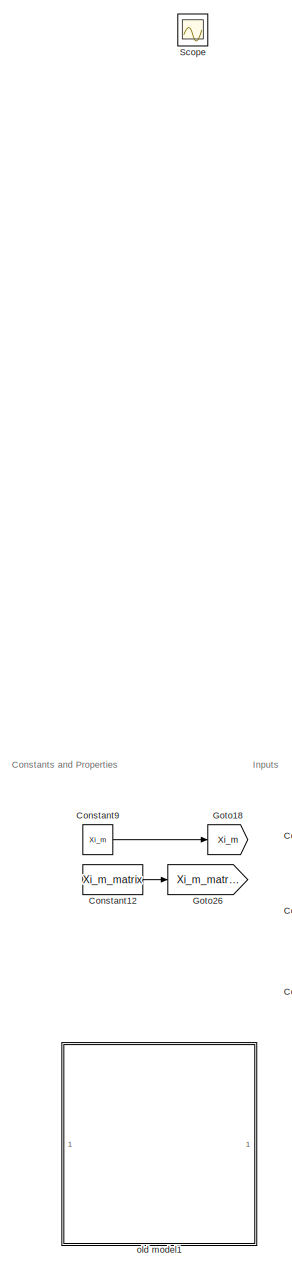
[diagram: root canvas - part 1/2, left side, full height]
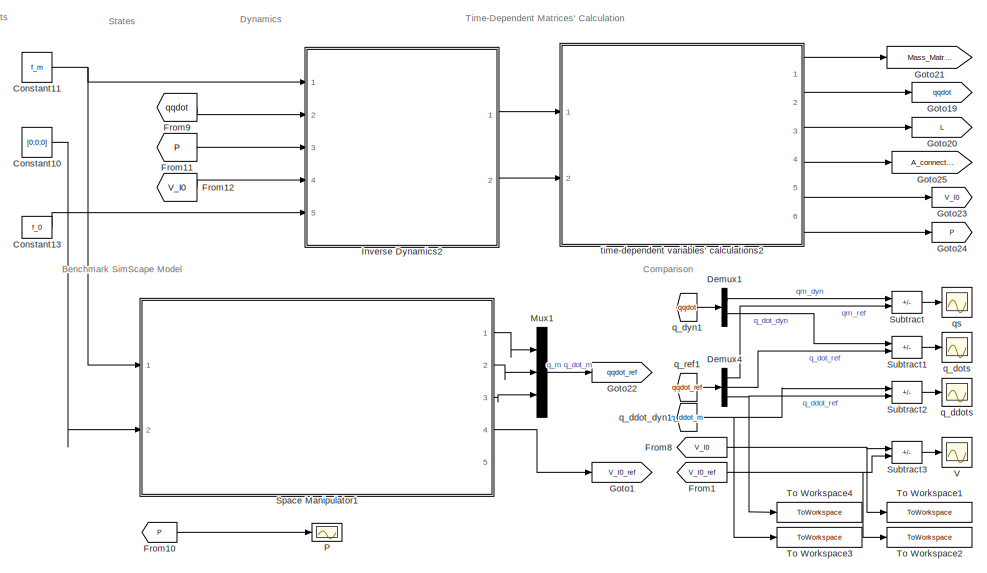
[diagram: root canvas - part 2/2, full width, bottom band]
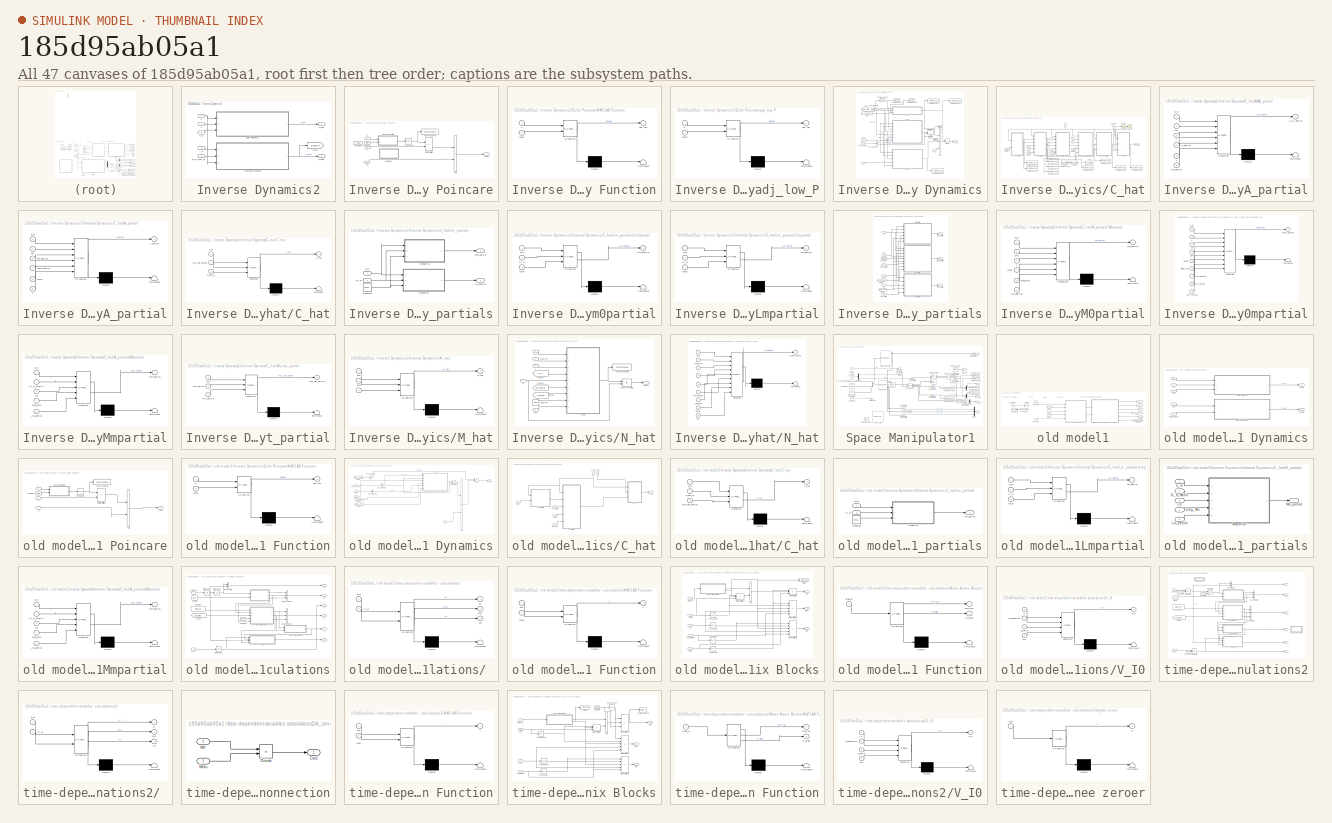
[diagram: thumbnail index - all 47 canvases of the model, root first then tree order]
MODEL slx_185d95ab05a1
KIND model
CONFIG AbsTol = auto
CONFIG EnableMultiTasking = on
CONFIG FixedStep = 0.01
CONFIG InitFcn = % ************** Initiate forces\n% f0=[0;0;0;0;0;0];\n% f0=[0;0;0;0;0;0;0];\n%f_0=[0;0;0];\n%f_m=[0;0];\n%f_e=[0;0;0;0;0;0];\n%iota0=eye(6);\n% ************** Initiate states\n%q_m=[2;1];\n%q_dot_m=[0;1];\n%P=[0;0;0];\n%V_I0=[0;0;0];\n% ************** Load main\n%run(Main.m)
CONFIG MaxStep = auto
CONFIG MinStep = auto
CONFIG RelTol = 1e-3
CONFIG SampleTimeConstraint = Unconstrained
CONFIG SolverName = ode4
CONFIG StartTime = 0.0
CONFIG StopFcn = %format long\n%table(out.qddot.data(:,1)',out.qddot_ref.data(1,:))
CONFIG StopTime = 10
BLOCK [Constant] Constant10
  Value = [0;0;0]
  VectorParams1D = off
BLOCK [Constant] Constant11
  Value = f_m
  VectorParams1D = off
BLOCK [Constant] Constant12
  Value = Xi_m_matrix
  VectorParams1D = off
BLOCK [Constant] Constant13
  Value = f_0
  VectorParams1D = off
BLOCK [Constant] Constant9
  Value = Xi_m
  VectorParams1D = off
BLOCK [Demux] Demux1
  Outputs = 2
  Ports = [1, 2]
BLOCK [Demux] Demux4
  Outputs = 3
  Ports = [1, 3]
BLOCK [From] From1
  GotoTag = V_I0_ref
  TagVisibility = global
BLOCK [From] From10
  GotoTag = P
  TagVisibility = global
BLOCK [From] From11
  GotoTag = P
  TagVisibility = global
BLOCK [From] From12
  GotoTag = V_I0
  TagVisibility = global
BLOCK [From] From8
  GotoTag = V_I0
  TagVisibility = global
BLOCK [From] From9
  GotoTag = qqdot
  TagVisibility = global
BLOCK [Goto] Goto1
  GotoTag = V_I0_ref
  TagVisibility = global
BLOCK [Goto] Goto18
  GotoTag = Xi_m
  TagVisibility = global
BLOCK [Goto] Goto19
  GotoTag = qqdot
  TagVisibility = global
BLOCK [Goto] Goto20
  GotoTag = L
  TagVisibility = global
BLOCK [Goto] Goto21
  GotoTag = Mass_Matrix
  TagVisibility = global
BLOCK [Goto] Goto22
  GotoTag = qqdot_ref
  TagVisibility = global
BLOCK [Goto] Goto23
  GotoTag = V_I0
  TagVisibility = global
BLOCK [Goto] Goto24
  GotoTag = P
  TagVisibility = global
BLOCK [Goto] Goto25
  GotoTag = A_connection
  TagVisibility = global
BLOCK [Goto] Goto26
  GotoTag = Xi_m_matrix
  TagVisibility = global
BLOCK [SubSystem] Inverse Dynamics2
  NameLocation = right
  Ports = [5, 2]
  RequestExecContextInheritance = off
BLOCK [SubSystem] Inverse Dynamics2/Euler Poincare
  Ports = [3, 1]
  RequestExecContextInheritance = off
BLOCK [Sum] Inverse Dynamics2/Euler Poincare/Add
  IconShape = rectangular
  Inputs = -+
  Ports = [2, 1]
BLOCK [Constant] Inverse Dynamics2/Euler Poincare/Constant
  Value = iota0
BLOCK [Constant] Inverse Dynamics2/Euler Poincare/Constant1
  Commented = on
  Value = eye(6,6)
BLOCK [SubSystem] Inverse Dynamics2/Euler Poincare/MATLAB Function
  ErrorFcn = Stateflow.Translate.translate
  PermitHierarchicalResolution = ExplicitOnly
  Ports = [2, 1]
  RequestExecContextInheritance = off
  SFBlockType = MATLAB Function
  TreatAsAtomicUnit = on
BLOCK [Demux] Inverse Dynamics2/Euler Poincare/MATLAB Function/ Demux 
  Outputs = 1
  Ports = [1, 1]
BLOCK [S-Function] Inverse Dynamics2/Euler Poincare/MATLAB Function/ SFunction 
  EnableBusSupport = on
  FunctionName = sf_sfun
  PortCounts = [2 2]
  Ports = [2, 2]
  SFcnIsStateOwnerBlock = off
  SFunctionDeploymentMode = off
  Tag = Stateflow S-Function 27
BLOCK [Terminator] Inverse Dynamics2/Euler Poincare/MATLAB Function/ Terminator 
BLOCK [Inport] Inverse Dynamics2/Euler Poincare/MATLAB Function/V
BLOCK [Outport] Inverse Dynamics2/Euler Poincare/MATLAB Function/adj_low
BLOCK [Inport] Inverse Dynamics2/Euler Poincare/MATLAB Function/iota0
  Port = 2
BLOCK [Product] Inverse Dynamics2/Euler Poincare/Matrix Multiply
  Multiplication = Matrix(*)
  Ports = [2, 1]
BLOCK [Inport] Inverse Dynamics2/Euler Poincare/P
BLOCK [Outport] Inverse Dynamics2/Euler Poincare/P_dot
BLOCK [ToWorkspace] Inverse Dynamics2/Euler Poincare/To Workspace
  FixptAsFi = on
  MaxDataPoints = inf
  Ports = [1]
  SampleTime = -1
  SaveFormat = Timeseries
  VariableName = simout
BLOCK [Math] Inverse Dynamics2/Euler Poincare/Transpose
  Operator = transpose
  Ports = [1, 1]
BLOCK [Inport] Inverse Dynamics2/Euler Poincare/V
  Port = 2
BLOCK [SubSystem] Inverse Dynamics2/Euler Poincare/adj_low_P
  ErrorFcn = Stateflow.Translate.translate
  PermitHierarchicalResolution = ExplicitOnly
  Ports = [2, 1]
  RequestExecContextInheritance = off
  SFBlockType = MATLAB Function
  TreatAsAtomicUnit = on
BLOCK [Demux] Inverse Dynamics2/Euler Poincare/adj_low_P/ Demux 
  Outputs = 1
  Ports = [1, 1]
BLOCK [S-Function] Inverse Dynamics2/Euler Poincare/adj_low_P/ SFunction 
  EnableBusSupport = on
  FunctionName = sf_sfun
  PortCounts = [2 2]
  Ports = [2, 2]
  SFcnIsStateOwnerBlock = off
  SFunctionDeploymentMode = off
  Tag = Stateflow S-Function 1
BLOCK [Terminator] Inverse Dynamics2/Euler Poincare/adj_low_P/ Terminator 
BLOCK [Inport] Inverse Dynamics2/Euler Poincare/adj_low_P/P
BLOCK [Outport] Inverse Dynamics2/Euler Poincare/adj_low_P/adj_low
BLOCK [Inport] Inverse Dynamics2/Euler Poincare/adj_low_P/iota0
  Port = 2
BLOCK [Inport] Inverse Dynamics2/Euler Poincare/f_0
  Port = 3
BLOCK [Goto] Inverse Dynamics2/Goto
  GotoTag = q_ddot_m
  TagVisibility = global
BLOCK [SubSystem] Inverse Dynamics2/Internal Dynamics
  Ports = [3, 1]
  RequestExecContextInheritance = off
BLOCK [Sum] Inverse Dynamics2/Internal Dynamics/Add
  IconShape = rectangular
  Inputs = --+
  Ports = [3, 1]
BLOCK [BusSelector] Inverse Dynamics2/Internal Dynamics/Bus Selector1
  OutputSignals = Lm,Lm0
  Ports = [1, 2]
BLOCK [BusSelector] Inverse Dynamics2/Internal Dynamics/Bus Selector2
  OutputSignals = signal1,signal2,signal3
  Ports = [1, 3]
BLOCK [BusSelector] Inverse Dynamics2/Internal Dynamics/Bus Selector3
  OutputSignals = q,q_dot
  Ports = [1, 2]
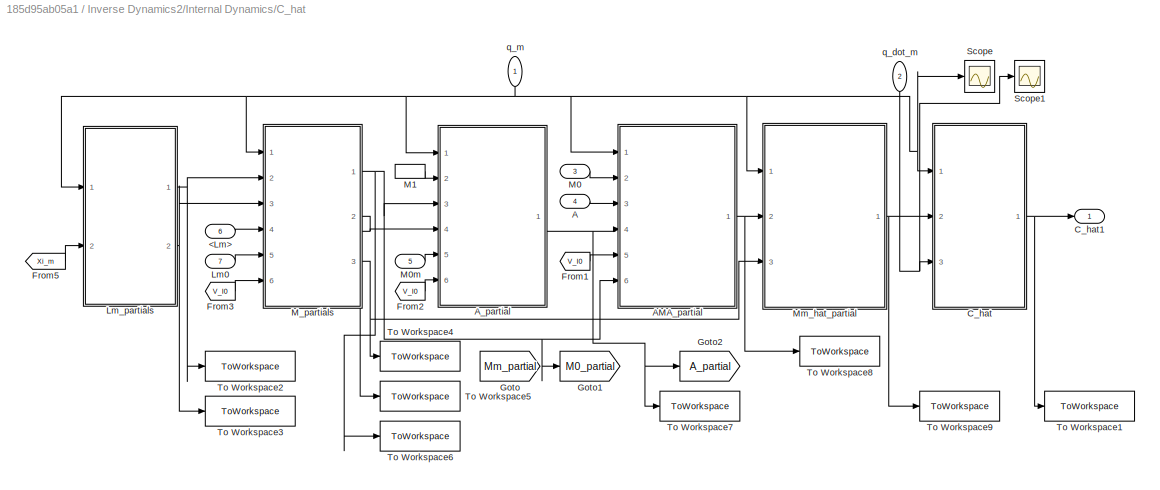
BLOCK [SubSystem] Inverse Dynamics2/Internal Dynamics/C_hat
  Ports = [7, 1]
  RequestExecContextInheritance = off
BLOCK [Inport] Inverse Dynamics2/Internal Dynamics/C_hat/<Lm>
  Port = 6
BLOCK [Inport] Inverse Dynamics2/Internal Dynamics/C_hat/A
  Port = 4
BLOCK [SubSystem] Inverse Dynamics2/Internal Dynamics/C_hat/AMA_partial
  ErrorFcn = Stateflow.Translate.translate
  PermitHierarchicalResolution = ExplicitOnly
  Ports = [6, 1]
  RequestExecContextInheritance = off
  SFBlockType = MATLAB Function
  TreatAsAtomicUnit = on
BLOCK [Demux] Inverse Dynamics2/Internal Dynamics/C_hat/AMA_partial/ Demux 
  Outputs = 1
  Ports = [1, 1]
BLOCK [S-Function] Inverse Dynamics2/Internal Dynamics/C_hat/AMA_partial/ SFunction 
  EnableBusSupport = on
  FunctionName = sf_sfun
  PortCounts = [6 2]
  Ports = [6, 2]
  SFcnIsStateOwnerBlock = off
  SFunctionDeploymentMode = off
  Tag = Stateflow S-Function 28
BLOCK [Terminator] Inverse Dynamics2/Internal Dynamics/C_hat/AMA_partial/ Terminator 
BLOCK [Inport] Inverse Dynamics2/Internal Dynamics/C_hat/AMA_partial/A
  Port = 3
BLOCK [Outport] Inverse Dynamics2/Internal Dynamics/C_hat/AMA_partial/AMA_partial
BLOCK [Inport] Inverse Dynamics2/Internal Dynamics/C_hat/AMA_partial/A_partial
  Port = 4
BLOCK [Inport] Inverse Dynamics2/Internal Dynamics/C_hat/AMA_partial/M0
  Port = 2
BLOCK [Inport] Inverse Dynamics2/Internal Dynamics/C_hat/AMA_partial/M0_partial
  Port = 6
BLOCK [Inport] Inverse Dynamics2/Internal Dynamics/C_hat/AMA_partial/V
  Port = 5
BLOCK [Inport] Inverse Dynamics2/Internal Dynamics/C_hat/AMA_partial/q_m
BLOCK [SubSystem] Inverse Dynamics2/Internal Dynamics/C_hat/A_partial
  ErrorFcn = Stateflow.Translate.translate
  PermitHierarchicalResolution = ExplicitOnly
  Ports = [6, 1]
  RequestExecContextInheritance = off
  SFBlockType = MATLAB Function
  TreatAsAtomicUnit = on
BLOCK [Demux] Inverse Dynamics2/Internal Dynamics/C_hat/A_partial/ Demux 
  Outputs = 1
  Ports = [1, 1]
BLOCK [S-Function] Inverse Dynamics2/Internal Dynamics/C_hat/A_partial/ SFunction 
  EnableBusSupport = on
  FunctionName = sf_sfun
  PortCounts = [6 2]
  Ports = [6, 2]
  SFcnIsStateOwnerBlock = off
  SFunctionDeploymentMode = off
  Tag = Stateflow S-Function 29
BLOCK [Terminator] Inverse Dynamics2/Internal Dynamics/C_hat/A_partial/ Terminator 
BLOCK [Outport] Inverse Dynamics2/Internal Dynamics/C_hat/A_partial/A_partial
BLOCK [Inport] Inverse Dynamics2/Internal Dynamics/C_hat/A_partial/M0
  Port = 2
BLOCK [Inport] Inverse Dynamics2/Internal Dynamics/C_hat/A_partial/M0_partial
  Port = 3
BLOCK [Inport] Inverse Dynamics2/Internal Dynamics/C_hat/A_partial/M0m
  Port = 5
BLOCK [Inport] Inverse Dynamics2/Internal Dynamics/C_hat/A_partial/M0m_partial
  Port = 4
BLOCK [Inport] Inverse Dynamics2/Internal Dynamics/C_hat/A_partial/V
  Port = 6
BLOCK [Inport] Inverse Dynamics2/Internal Dynamics/C_hat/A_partial/q_m
BLOCK [SubSystem] Inverse Dynamics2/Internal Dynamics/C_hat/C_hat
  ErrorFcn = Stateflow.Translate.translate
  PermitHierarchicalResolution = ExplicitOnly
  Ports = [3, 1]
  RequestExecContextInheritance = off
  SFBlockType = MATLAB Function
  TreatAsAtomicUnit = on
BLOCK [Demux] Inverse Dynamics2/Internal Dynamics/C_hat/C_hat/ Demux 
  Outputs = 1
  Ports = [1, 1]
BLOCK [S-Function] Inverse Dynamics2/Internal Dynamics/C_hat/C_hat/ SFunction 
  EnableBusSupport = on
  FunctionName = sf_sfun
  PortCounts = [3 2]
  Ports = [3, 2]
  SFcnIsStateOwnerBlock = off
  SFunctionDeploymentMode = off
  Tag = Stateflow S-Function 36
BLOCK [Terminator] Inverse Dynamics2/Internal Dynamics/C_hat/C_hat/ Terminator 
BLOCK [Outport] Inverse Dynamics2/Internal Dynamics/C_hat/C_hat/C_hat
BLOCK [Inport] Inverse Dynamics2/Internal Dynamics/C_hat/C_hat/Mm_hat_partial
  Port = 2
BLOCK [Inport] Inverse Dynamics2/Internal Dynamics/C_hat/C_hat/q_dot_m
  Port = 3
BLOCK [Inport] Inverse Dynamics2/Internal Dynamics/C_hat/C_hat/q_m
BLOCK [Outport] Inverse Dynamics2/Internal Dynamics/C_hat/C_hat1
BLOCK [From] Inverse Dynamics2/Internal Dynamics/C_hat/From1
  GotoTag = V_I0
  TagVisibility = global
BLOCK [From] Inverse Dynamics2/Internal Dynamics/C_hat/From2
  GotoTag = V_I0
  TagVisibility = global
BLOCK [From] Inverse Dynamics2/Internal Dynamics/C_hat/From3
  GotoTag = V_I0
  TagVisibility = global
BLOCK [From] Inverse Dynamics2/Internal Dynamics/C_hat/From5
  GotoTag = Xi_m
  TagVisibility = global
BLOCK [Goto] Inverse Dynamics2/Internal Dynamics/C_hat/Goto
  Commented = on
  GotoTag = Mm_partial
  TagVisibility = global
BLOCK [Goto] Inverse Dynamics2/Internal Dynamics/C_hat/Goto1
  GotoTag = M0_partial
  TagVisibility = global
BLOCK [Goto] Inverse Dynamics2/Internal Dynamics/C_hat/Goto2
  GotoTag = A_partial
  TagVisibility = global
BLOCK [Inport] Inverse Dynamics2/Internal Dynamics/C_hat/Lm0
  Port = 7
BLOCK [SubSystem] Inverse Dynamics2/Internal Dynamics/C_hat/Lm_partials
  Ports = [2, 2]
  RequestExecContextInheritance = off
BLOCK [Constant] Inverse Dynamics2/Internal Dynamics/C_hat/Lm_partials/Constant
  Value = iota0
BLOCK [Outport] Inverse Dynamics2/Internal Dynamics/C_hat/Lm_partials/Lm0_partial
  Port = 2
BLOCK [SubSystem] Inverse Dynamics2/Internal Dynamics/C_hat/Lm_partials/Lm0partial
  ErrorFcn = Stateflow.Translate.translate
  PermitHierarchicalResolution = ExplicitOnly
  Ports = [3, 1]
  RequestExecContextInheritance = off
  SFBlockType = MATLAB Function
  TreatAsAtomicUnit = on
BLOCK [Demux] Inverse Dynamics2/Internal Dynamics/C_hat/Lm_partials/Lm0partial/ Demux 
  Outputs = 1
  Ports = [1, 1]
BLOCK [S-Function] Inverse Dynamics2/Internal Dynamics/C_hat/Lm_partials/Lm0partial/ SFunction 
  EnableBusSupport = on
  FunctionName = sf_sfun
  PortCounts = [3 2]
  Ports = [3, 2]
  SFcnIsStateOwnerBlock = off
  SFunctionDeploymentMode = off
  Tag = Stateflow S-Function 41
BLOCK [Terminator] Inverse Dynamics2/Internal Dynamics/C_hat/Lm_partials/Lm0partial/ Terminator 
BLOCK [Outport] Inverse Dynamics2/Internal Dynamics/C_hat/Lm_partials/Lm0partial/Lm0_partial
BLOCK [Inport] Inverse Dynamics2/Internal Dynamics/C_hat/Lm_partials/Lm0partial/Xi_m
  Port = 2
BLOCK [Inport] Inverse Dynamics2/Internal Dynamics/C_hat/Lm_partials/Lm0partial/iota0
  Port = 3
BLOCK [Inport] Inverse Dynamics2/Internal Dynamics/C_hat/Lm_partials/Lm0partial/q_m
BLOCK [Outport] Inverse Dynamics2/Internal Dynamics/C_hat/Lm_partials/Lm_partial
BLOCK [SubSystem] Inverse Dynamics2/Internal Dynamics/C_hat/Lm_partials/Lmpartial
  ErrorFcn = Stateflow.Translate.translate
  PermitHierarchicalResolution = ExplicitOnly
  Ports = [3, 1]
  RequestExecContextInheritance = off
  SFBlockType = MATLAB Function
  TreatAsAtomicUnit = on
BLOCK [Demux] Inverse Dynamics2/Internal Dynamics/C_hat/Lm_partials/Lmpartial/ Demux 
  Outputs = 1
  Ports = [1, 1]
BLOCK [S-Function] Inverse Dynamics2/Internal Dynamics/C_hat/Lm_partials/Lmpartial/ SFunction 
  EnableBusSupport = on
  FunctionName = sf_sfun
  PortCounts = [3 2]
  Ports = [3, 2]
  SFcnIsStateOwnerBlock = off
  SFunctionDeploymentMode = off
  Tag = Stateflow S-Function 46
BLOCK [Terminator] Inverse Dynamics2/Internal Dynamics/C_hat/Lm_partials/Lmpartial/ Terminator 
BLOCK [Outport] Inverse Dynamics2/Internal Dynamics/C_hat/Lm_partials/Lmpartial/Lm_partial
BLOCK [Inport] Inverse Dynamics2/Internal Dynamics/C_hat/Lm_partials/Lmpartial/Xi_m
  Port = 2
BLOCK [Inport] Inverse Dynamics2/Internal Dynamics/C_hat/Lm_partials/Lmpartial/iota0
  Port = 3
BLOCK [Inport] Inverse Dynamics2/Internal Dynamics/C_hat/Lm_partials/Lmpartial/q_m
BLOCK [Inport] Inverse Dynamics2/Internal Dynamics/C_hat/Lm_partials/Xi_m
  Port = 2
BLOCK [Inport] Inverse Dynamics2/Internal Dynamics/C_hat/Lm_partials/q_m
BLOCK [Inport] Inverse Dynamics2/Internal Dynamics/C_hat/M0
  Port = 3
BLOCK [Inport] Inverse Dynamics2/Internal Dynamics/C_hat/M0m
  Port = 5
BLOCK [InportShadow] Inverse Dynamics2/Internal Dynamics/C_hat/M1
  Port = 3
BLOCK [SubSystem] Inverse Dynamics2/Internal Dynamics/C_hat/M_partials
  Ports = [6, 3]
  RequestExecContextInheritance = off
BLOCK [SubSystem] Inverse Dynamics2/Internal Dynamics/C_hat/M_partials/ M0partial
  ErrorFcn = Stateflow.Translate.translate
  PermitHierarchicalResolution = ExplicitOnly
  Ports = [6, 1]
  RequestExecContextInheritance = off
  SFBlockType = MATLAB Function
  TreatAsAtomicUnit = on
BLOCK [Demux] Inverse Dynamics2/Internal Dynamics/C_hat/M_partials/ M0partial/ Demux 
  Outputs = 1
  Ports = [1, 1]
BLOCK [S-Function] Inverse Dynamics2/Internal Dynamics/C_hat/M_partials/ M0partial/ SFunction 
  EnableBusSupport = on
  FunctionName = sf_sfun
  PortCounts = [6 2]
  Ports = [6, 2]
  SFcnIsStateOwnerBlock = off
  SFunctionDeploymentMode = off
  Tag = Stateflow S-Function 47
BLOCK [Terminator] Inverse Dynamics2/Internal Dynamics/C_hat/M_partials/ M0partial/ Terminator 
BLOCK [Inport] Inverse Dynamics2/Internal Dynamics/C_hat/M_partials/ M0partial/Lm0
  Port = 2
BLOCK [Inport] Inverse Dynamics2/Internal Dynamics/C_hat/M_partials/ M0partial/Lm0_partial
  Port = 6
BLOCK [Outport] Inverse Dynamics2/Internal Dynamics/C_hat/M_partials/ M0partial/M0_partial
BLOCK [Inport] Inverse Dynamics2/Internal Dynamics/C_hat/M_partials/ M0partial/V
  Port = 3
BLOCK [Inport] Inverse Dynamics2/Internal Dynamics/C_hat/M_partials/ M0partial/diag_Mm
  Port = 5
BLOCK [Inport] Inverse Dynamics2/Internal Dynamics/C_hat/M_partials/ M0partial/iota0
  Port = 4
BLOCK [Inport] Inverse Dynamics2/Internal Dynamics/C_hat/M_partials/ M0partial/q_m
BLOCK [Constant] Inverse Dynamics2/Internal Dynamics/C_hat/M_partials/Constant
  Value = iota0
BLOCK [From] Inverse Dynamics2/Internal Dynamics/C_hat/M_partials/From6
  GotoTag = Xi_m_matrix
  TagVisibility = global
BLOCK [From] Inverse Dynamics2/Internal Dynamics/C_hat/M_partials/From8
  GotoTag = diag_Mm
  TagVisibility = global
BLOCK [Inport] Inverse Dynamics2/Internal Dynamics/C_hat/M_partials/Lm
  Port = 4
BLOCK [Inport] Inverse Dynamics2/Internal Dynamics/C_hat/M_partials/Lm0
  Port = 5
BLOCK [Inport] Inverse Dynamics2/Internal Dynamics/C_hat/M_partials/Lm0_partial
  Port = 3
BLOCK [Inport] Inverse Dynamics2/Internal Dynamics/C_hat/M_partials/Lm_partial
  Port = 2
BLOCK [Outport] Inverse Dynamics2/Internal Dynamics/C_hat/M_partials/M0_partial
BLOCK [Outport] Inverse Dynamics2/Internal Dynamics/C_hat/M_partials/M0m_partial
  Port = 2
BLOCK [SubSystem] Inverse Dynamics2/Internal Dynamics/C_hat/M_partials/M0mpartial
  ErrorFcn = Stateflow.Translate.translate
  PermitHierarchicalResolution = ExplicitOnly
  Ports = [9, 1]
  RequestExecContextInheritance = off
  SFBlockType = MATLAB Function
  TreatAsAtomicUnit = on
BLOCK [Demux] Inverse Dynamics2/Internal Dynamics/C_hat/M_partials/M0mpartial/ Demux 
  Outputs = 1
  Ports = [1, 1]
BLOCK [S-Function] Inverse Dynamics2/Internal Dynamics/C_hat/M_partials/M0mpartial/ SFunction 
  EnableBusSupport = on
  FunctionName = sf_sfun
  PortCounts = [9 2]
  Ports = [9, 2]
  SFcnIsStateOwnerBlock = off
  SFunctionDeploymentMode = off
  Tag = Stateflow S-Function 48
BLOCK [Terminator] Inverse Dynamics2/Internal Dynamics/C_hat/M_partials/M0mpartial/ Terminator 
BLOCK [Inport] Inverse Dynamics2/Internal Dynamics/C_hat/M_partials/M0mpartial/Lm
  Port = 3
BLOCK [Inport] Inverse Dynamics2/Internal Dynamics/C_hat/M_partials/M0mpartial/Lm0
  Port = 4
BLOCK [Inport] Inverse Dynamics2/Internal Dynamics/C_hat/M_partials/M0mpartial/Lm0_partial
  Port = 7
BLOCK [Inport] Inverse Dynamics2/Internal Dynamics/C_hat/M_partials/M0mpartial/Lm_partial
  Port = 8
BLOCK [Outport] Inverse Dynamics2/Internal Dynamics/C_hat/M_partials/M0mpartial/M0m_partial
BLOCK [Inport] Inverse Dynamics2/Internal Dynamics/C_hat/M_partials/M0mpartial/V
  Port = 2
BLOCK [Inport] Inverse Dynamics2/Internal Dynamics/C_hat/M_partials/M0mpartial/Xi_m_matrix
  Port = 9
BLOCK [Inport] Inverse Dynamics2/Internal Dynamics/C_hat/M_partials/M0mpartial/diag_Mm
  Port = 6
BLOCK [Inport] Inverse Dynamics2/Internal Dynamics/C_hat/M_partials/M0mpartial/iota0
  Port = 5
BLOCK [Inport] Inverse Dynamics2/Internal Dynamics/C_hat/M_partials/M0mpartial/q_m
BLOCK [Outport] Inverse Dynamics2/Internal Dynamics/C_hat/M_partials/Mm_partial
  Port = 3
BLOCK [SubSystem] Inverse Dynamics2/Internal Dynamics/C_hat/M_partials/Mmpartial
  ErrorFcn = Stateflow.Translate.translate
  PermitHierarchicalResolution = ExplicitOnly
  Ports = [5, 1]
  RequestExecContextInheritance = off
  SFBlockType = MATLAB Function
  TreatAsAtomicUnit = on
BLOCK [Demux] Inverse Dynamics2/Internal Dynamics/C_hat/M_partials/Mmpartial/ Demux 
  Outputs = 1
  Ports = [1, 1]
BLOCK [S-Function] Inverse Dynamics2/Internal Dynamics/C_hat/M_partials/Mmpartial/ SFunction 
  EnableBusSupport = on
  FunctionName = sf_sfun
  PortCounts = [5 2]
  Ports = [5, 2]
  SFcnIsStateOwnerBlock = off
  SFunctionDeploymentMode = off
  Tag = Stateflow S-Function 49
BLOCK [Terminator] Inverse Dynamics2/Internal Dynamics/C_hat/M_partials/Mmpartial/ Terminator 
BLOCK [Inport] Inverse Dynamics2/Internal Dynamics/C_hat/M_partials/Mmpartial/Lm
  Port = 3
BLOCK [Inport] Inverse Dynamics2/Internal Dynamics/C_hat/M_partials/Mmpartial/Lm_partial
  Port = 5
BLOCK [Outport] Inverse Dynamics2/Internal Dynamics/C_hat/M_partials/Mmpartial/Mm_partial
BLOCK [Inport] Inverse Dynamics2/Internal Dynamics/C_hat/M_partials/Mmpartial/Xi_m_matrix
  Port = 2
BLOCK [Inport] Inverse Dynamics2/Internal Dynamics/C_hat/M_partials/Mmpartial/diag_Mm
  Port = 4
BLOCK [Inport] Inverse Dynamics2/Internal Dynamics/C_hat/M_partials/Mmpartial/q_m
BLOCK [Inport] Inverse Dynamics2/Internal Dynamics/C_hat/M_partials/V
  Port = 6
BLOCK [Inport] Inverse Dynamics2/Internal Dynamics/C_hat/M_partials/q_m
BLOCK [SubSystem] Inverse Dynamics2/Internal Dynamics/C_hat/Mm_hat_partial
  ErrorFcn = Stateflow.Translate.translate
  PermitHierarchicalResolution = ExplicitOnly
  Ports = [3, 1]
  RequestExecContextInheritance = off
  SFBlockType = MATLAB Function
  TreatAsAtomicUnit = on
BLOCK [Demux] Inverse Dynamics2/Internal Dynamics/C_hat/Mm_hat_partial/ Demux 
  Outputs = 1
  Ports = [1, 1]
BLOCK [S-Function] Inverse Dynamics2/Internal Dynamics/C_hat/Mm_hat_partial/ SFunction 
  EnableBusSupport = on
  FunctionName = sf_sfun
  PortCounts = [3 2]
  Ports = [3, 2]
  SFcnIsStateOwnerBlock = off
  SFunctionDeploymentMode = off
  Tag = Stateflow S-Function 50
BLOCK [Terminator] Inverse Dynamics2/Internal Dynamics/C_hat/Mm_hat_partial/ Terminator 
BLOCK [Inport] Inverse Dynamics2/Internal Dynamics/C_hat/Mm_hat_partial/AMA_partial
  Port = 2
BLOCK [Outport] Inverse Dynamics2/Internal Dynamics/C_hat/Mm_hat_partial/Mm_hat_partial
BLOCK [Inport] Inverse Dynamics2/Internal Dynamics/C_hat/Mm_hat_partial/Mm_partial
  Port = 3
BLOCK [Inport] Inverse Dynamics2/Internal Dynamics/C_hat/Mm_hat_partial/q_m
BLOCK [Scope] Inverse Dynamics2/Internal Dynamics/C_hat/Scope
  Floating = off
  NumInputPorts = 1
  Ports = [1]
  ScopeSpecificationString = Simulink.scopes.TimeScopeBlockCfg('CurrentConfiguration', extmgr.ConfigurationSet(extmgr.Configuration('Core','General UI',true),extmgr.Configuration('Core','Source UI',true),extmgr.Configuration('Sources','WiredSimulink',true,'DataLoggingVariableName','ScopeData1'),extmgr.Configuration('Visuals','Time Domain',true,'SerializedDisplays',{struct('MinYLimReal','0.86803','MaxYLimReal','2.18774','YLabe...<+1370ch>
BLOCK [Scope] Inverse Dynamics2/Internal Dynamics/C_hat/Scope1
  Floating = off
  NumInputPorts = 1
  Ports = [1]
  ScopeSpecificationString = Simulink.scopes.TimeScopeBlockCfg('CurrentConfiguration', extmgr.ConfigurationSet(extmgr.Configuration('Core','General UI',true),extmgr.Configuration('Core','Source UI',true),extmgr.Configuration('Sources','WiredSimulink',true,'DataLoggingVariableName','ScopeData2'),extmgr.Configuration('Visuals','Time Domain',true,'SerializedDisplays',{struct('MinYLimReal','-3.48052','MaxYLimReal','31.32468','YLa...<+1384ch>
BLOCK [ToWorkspace] Inverse Dynamics2/Internal Dynamics/C_hat/To Workspace1
  FixptAsFi = on
  MaxDataPoints = inf
  Ports = [1]
  SampleTime = -1
  SaveFormat = Timeseries
  VariableName = chat
BLOCK [ToWorkspace] Inverse Dynamics2/Internal Dynamics/C_hat/To Workspace2
  FixptAsFi = on
  MaxDataPoints = inf
  Ports = [1]
  SampleTime = -1
  SaveFormat = Timeseries
  VariableName = Lmpart
BLOCK [ToWorkspace] Inverse Dynamics2/Internal Dynamics/C_hat/To Workspace3
  FixptAsFi = on
  MaxDataPoints = inf
  Ports = [1]
  SampleTime = -1
  SaveFormat = Timeseries
  VariableName = Lm0part
BLOCK [ToWorkspace] Inverse Dynamics2/Internal Dynamics/C_hat/To Workspace4
  FixptAsFi = on
  MaxDataPoints = inf
  Ports = [1]
  SampleTime = -1
  SaveFormat = Timeseries
  VariableName = M0partial
BLOCK [ToWorkspace] Inverse Dynamics2/Internal Dynamics/C_hat/To Workspace5
  FixptAsFi = on
  MaxDataPoints = inf
  Ports = [1]
  SampleTime = -1
  SaveFormat = Timeseries
  VariableName = M0mpartial
BLOCK [ToWorkspace] Inverse Dynamics2/Internal Dynamics/C_hat/To Workspace6
  FixptAsFi = on
  MaxDataPoints = inf
  Ports = [1]
  SampleTime = -1
  SaveFormat = Timeseries
  VariableName = Mmpartial
BLOCK [ToWorkspace] Inverse Dynamics2/Internal Dynamics/C_hat/To Workspace7
  FixptAsFi = on
  MaxDataPoints = inf
  Ports = [1]
  SampleTime = -1
  SaveFormat = Timeseries
  VariableName = Apartial
BLOCK [ToWorkspace] Inverse Dynamics2/Internal Dynamics/C_hat/To Workspace8
  FixptAsFi = on
  MaxDataPoints = inf
  Ports = [1]
  SampleTime = -1
  SaveFormat = Timeseries
  VariableName = AMApartial
BLOCK [ToWorkspace] Inverse Dynamics2/Internal Dynamics/C_hat/To Workspace9
  FixptAsFi = on
  MaxDataPoints = inf
  Ports = [1]
  SampleTime = -1
  SaveFormat = Timeseries
  VariableName = Mmhatpartial
BLOCK [Inport] Inverse Dynamics2/Internal Dynamics/C_hat/q_dot_m
  NameLocation = left
  Port = 2
BLOCK [Inport] Inverse Dynamics2/Internal Dynamics/C_hat/q_m
  NameLocation = left
BLOCK [Product] Inverse Dynamics2/Internal Dynamics/Divide
  Inputs = /*
  Multiplication = Matrix(*)
  Ports = [2, 1]
BLOCK [From] Inverse Dynamics2/Internal Dynamics/From
  GotoTag = A_connection
  TagVisibility = global
BLOCK [From] Inverse Dynamics2/Internal Dynamics/From2
  GotoTag = Mass_Matrix
  TagVisibility = global
BLOCK [From] Inverse Dynamics2/Internal Dynamics/From4
  GotoTag = L
  TagVisibility = global
BLOCK [SubSystem] Inverse Dynamics2/Internal Dynamics/M_hat
  ErrorFcn = Stateflow.Translate.translate
  PermitHierarchicalResolution = ExplicitOnly
  Ports = [3, 1]
  RequestExecContextInheritance = off
  SFBlockType = MATLAB Function
  TreatAsAtomicUnit = on
BLOCK [Demux] Inverse Dynamics2/Internal Dynamics/M_hat/ Demux 
  Outputs = 1
  Ports = [1, 1]
BLOCK [S-Function] Inverse Dynamics2/Internal Dynamics/M_hat/ SFunction 
  EnableBusSupport = on
  FunctionName = sf_sfun
  PortCounts = [3 2]
  Ports = [3, 2]
  SFcnIsStateOwnerBlock = off
  SFunctionDeploymentMode = off
  Tag = Stateflow S-Function 51
BLOCK [Terminator] Inverse Dynamics2/Internal Dynamics/M_hat/ Terminator 
BLOCK [Inport] Inverse Dynamics2/Internal Dynamics/M_hat/A
  Port = 3
BLOCK [Inport] Inverse Dynamics2/Internal Dynamics/M_hat/M0
BLOCK [Outport] Inverse Dynamics2/Internal Dynamics/M_hat/M_hat
BLOCK [Inport] Inverse Dynamics2/Internal Dynamics/M_hat/Mm
  Port = 2
BLOCK [Product] Inverse Dynamics2/Internal Dynamics/Matrix Multiply3
  Multiplication = Matrix(*)
  Ports = [2, 1]
BLOCK [SubSystem] Inverse Dynamics2/Internal Dynamics/N_hat
  Ports = [5, 1]
  RequestExecContextInheritance = off
BLOCK [Inport] Inverse Dynamics2/Internal Dynamics/N_hat/A
  Port = 3
BLOCK [Constant] Inverse Dynamics2/Internal Dynamics/N_hat/Constant
  Value = iota0
BLOCK [From] Inverse Dynamics2/Internal Dynamics/N_hat/From
  GotoTag = A_partial
  TagVisibility = global
BLOCK [From] Inverse Dynamics2/Internal Dynamics/N_hat/From1
  GotoTag = M0_partial
  TagVisibility = global
BLOCK [From] Inverse Dynamics2/Internal Dynamics/N_hat/From2
  GotoTag = V_I0
  TagVisibility = global
BLOCK [Inport] Inverse Dynamics2/Internal Dynamics/N_hat/M0
  Port = 5
BLOCK [Product] Inverse Dynamics2/Internal Dynamics/N_hat/Matrix Multiply
  Multiplication = Matrix(*)
  Ports = [2, 1]
BLOCK [SubSystem] Inverse Dynamics2/Internal Dynamics/N_hat/N_hat
  ErrorFcn = Stateflow.Translate.translate
  PermitHierarchicalResolution = ExplicitOnly
  Ports = [9, 1]
  RequestExecContextInheritance = off
  SFBlockType = MATLAB Function
  TreatAsAtomicUnit = on
BLOCK [Demux] Inverse Dynamics2/Internal Dynamics/N_hat/N_hat/ Demux 
  Outputs = 1
  Ports = [1, 1]
BLOCK [S-Function] Inverse Dynamics2/Internal Dynamics/N_hat/N_hat/ SFunction 
  EnableBusSupport = on
  FunctionName = sf_sfun
  PortCounts = [9 2]
  Ports = [9, 2]
  SFcnIsStateOwnerBlock = off
  SFunctionDeploymentMode = off
  Tag = Stateflow S-Function 66
BLOCK [Terminator] Inverse Dynamics2/Internal Dynamics/N_hat/N_hat/ Terminator 
BLOCK [Inport] Inverse Dynamics2/Internal Dynamics/N_hat/N_hat/A
  Port = 3
BLOCK [Inport] Inverse Dynamics2/Internal Dynamics/N_hat/N_hat/A_partial
  Port = 7
BLOCK [Inport] Inverse Dynamics2/Internal Dynamics/N_hat/N_hat/M0
  Port = 9
BLOCK [Inport] Inverse Dynamics2/Internal Dynamics/N_hat/N_hat/M0_partial
  Port = 6
BLOCK [Outport] Inverse Dynamics2/Internal Dynamics/N_hat/N_hat/N_hat_temp
BLOCK [Inport] Inverse Dynamics2/Internal Dynamics/N_hat/N_hat/P
  Port = 5
BLOCK [Inport] Inverse Dynamics2/Internal Dynamics/N_hat/N_hat/V
  Port = 4
BLOCK [Inport] Inverse Dynamics2/Internal Dynamics/N_hat/N_hat/iota0
  Port = 8
BLOCK [Inport] Inverse Dynamics2/Internal Dynamics/N_hat/N_hat/q_dot_m
  Port = 2
BLOCK [Inport] Inverse Dynamics2/Internal Dynamics/N_hat/N_hat/q_m
BLOCK [Outport] Inverse Dynamics2/Internal Dynamics/N_hat/N_hat1
BLOCK [Inport] Inverse Dynamics2/Internal Dynamics/N_hat/P
  Port = 4
BLOCK [ToWorkspace] Inverse Dynamics2/Internal Dynamics/N_hat/To Workspace
  FixptAsFi = on
  MaxDataPoints = inf
  Ports = [1]
  SampleTime = -1
  SaveFormat = Timeseries
  VariableName = N_firstpart
BLOCK [Inport] Inverse Dynamics2/Internal Dynamics/N_hat/q_dot_m
  Port = 2
BLOCK [Inport] Inverse Dynamics2/Internal Dynamics/N_hat/q_m
BLOCK [Inport] Inverse Dynamics2/Internal Dynamics/P
  Port = 3
BLOCK [Scope] Inverse Dynamics2/Internal Dynamics/Scope
  Floating = off
  NumInputPorts = 1
  Ports = [1]
  ScopeSpecificationString = Simulink.scopes.TimeScopeBlockCfg('CurrentConfiguration', extmgr.ConfigurationSet(extmgr.Configuration('Core','General UI',true),extmgr.Configuration('Core','Source UI',true),extmgr.Configuration('Sources','WiredSimulink',true,'DataLoggingVariableName','ScopeData4'),extmgr.Configuration('Visuals','Time Domain',true,'SerializedDisplays',{struct('MinYLimReal','-17917.34321','MaxYLimReal','6221.74521...<+1424ch>
BLOCK [Scope] Inverse Dynamics2/Internal Dynamics/Scope1
  Floating = off
  NumInputPorts = 1
  Ports = [1]
  ScopeSpecificationString = Simulink.scopes.TimeScopeBlockCfg('CurrentConfiguration', extmgr.ConfigurationSet(extmgr.Configuration('Core','General UI',true),extmgr.Configuration('Core','Source UI',true),extmgr.Configuration('Sources','WiredSimulink',true,'DataLoggingVariableName','ScopeData5'),extmgr.Configuration('Visuals','Time Domain',true,'SerializedDisplays',{struct('MinYLimReal','-3.48052','MaxYLimReal','31.32468','YLa...<+1384ch>
BLOCK [Scope] Inverse Dynamics2/Internal Dynamics/Scope2
  Floating = off
  NumInputPorts = 1
  Ports = [1]
  ScopeSpecificationString = Simulink.scopes.TimeScopeBlockCfg('CurrentConfiguration', extmgr.ConfigurationSet(extmgr.Configuration('Core','General UI',true),extmgr.Configuration('Core','Source UI',true),extmgr.Configuration('Sources','WiredSimulink',true,'DataLoggingVariableName','ScopeData3'),extmgr.Configuration('Visuals','Time Domain',true,'SerializedDisplays',{struct('MinYLimReal','-88783.67973','MaxYLimReal','-28682.279...<+1406ch>
BLOCK [ToWorkspace] Inverse Dynamics2/Internal Dynamics/To Workspace
  FixptAsFi = on
  MaxDataPoints = inf
  Ports = [1]
  SampleTime = -1
  SaveFormat = Timeseries
  VariableName = C_term
BLOCK [ToWorkspace] Inverse Dynamics2/Internal Dynamics/To Workspace1
  FixptAsFi = on
  MaxDataPoints = inf
  Ports = [1]
  SampleTime = -1
  SaveFormat = Timeseries
  VariableName = mhat
BLOCK [ToWorkspace] Inverse Dynamics2/Internal Dynamics/To Workspace2
  FixptAsFi = on
  MaxDataPoints = inf
  Ports = [1]
  SampleTime = -1
  SaveFormat = Timeseries
  VariableName = m0
BLOCK [ToWorkspace] Inverse Dynamics2/Internal Dynamics/To Workspace3
  FixptAsFi = on
  MaxDataPoints = inf
  Ports = [1]
  SampleTime = -1
  SaveFormat = Timeseries
  VariableName = m
BLOCK [ToWorkspace] Inverse Dynamics2/Internal Dynamics/To Workspace4
  FixptAsFi = on
  MaxDataPoints = inf
  Ports = [1]
  SampleTime = -1
  SaveFormat = Timeseries
  VariableName = A
BLOCK [ToWorkspace] Inverse Dynamics2/Internal Dynamics/To Workspace5
  FixptAsFi = on
  MaxDataPoints = inf
  Ports = [1]
  SampleTime = -1
  SaveFormat = Timeseries
  VariableName = N_term
BLOCK [Inport] Inverse Dynamics2/Internal Dynamics/f_m
BLOCK [Outport] Inverse Dynamics2/Internal Dynamics/q_ddot
BLOCK [Inport] Inverse Dynamics2/Internal Dynamics/q_m q_dot_m
  Port = 2
BLOCK [Inport] Inverse Dynamics2/P
  Port = 3
BLOCK [Outport] Inverse Dynamics2/P_dot
  Port = 2
BLOCK [Inport] Inverse Dynamics2/V
  Port = 4
BLOCK [Inport] Inverse Dynamics2/f_0
  Port = 5
BLOCK [Inport] Inverse Dynamics2/f_m
BLOCK [Outport] Inverse Dynamics2/q_ddot
BLOCK [Inport] Inverse Dynamics2/q_m q_dot_m
  Port = 2
BLOCK [Mux] Mux1
  DisplayOption = bar
  Inputs = 3
  Ports = [3, 1]
BLOCK [Scope] P
  Floating = off
  NumInputPorts = 1
  Ports = [1]
  ScopeSpecificationString = Simulink.scopes.TimeScopeBlockCfg('CurrentConfiguration', extmgr.ConfigurationSet(extmgr.Configuration('Core','General UI',true),extmgr.Configuration('Core','Source UI',true),extmgr.Configuration('Sources','WiredSimulink',true,'DataLoggingVariableName','ScopeData8'),extmgr.Configuration('Visuals','Time Domain',true,'SerializedDisplays',{struct('MinYLimReal','-0.25005','MaxYLimReal','2.25009','YLab...<+1765ch>
BLOCK [Scope] Scope
  Floating = off
  IOType = viewer
  NumInputPorts = 1
  Ports = []
  ScopeSpecificationString = Simulink.scopes.TimeScopeBlockCfg('CurrentConfiguration', extmgr.ConfigurationSet(extmgr.Configuration('Core','General UI',true),extmgr.Configuration('Core','Source UI',true),extmgr.Configuration('Sources','WiredSimulink',true),extmgr.Configuration('Visuals','Time Domain',true,'SerializedDisplays',{struct('MinYLimReal','-10','MaxYLimReal','10','YLabelReal','','MinYLimMag','0','MaxYLimMag','10','Le...<+777ch>
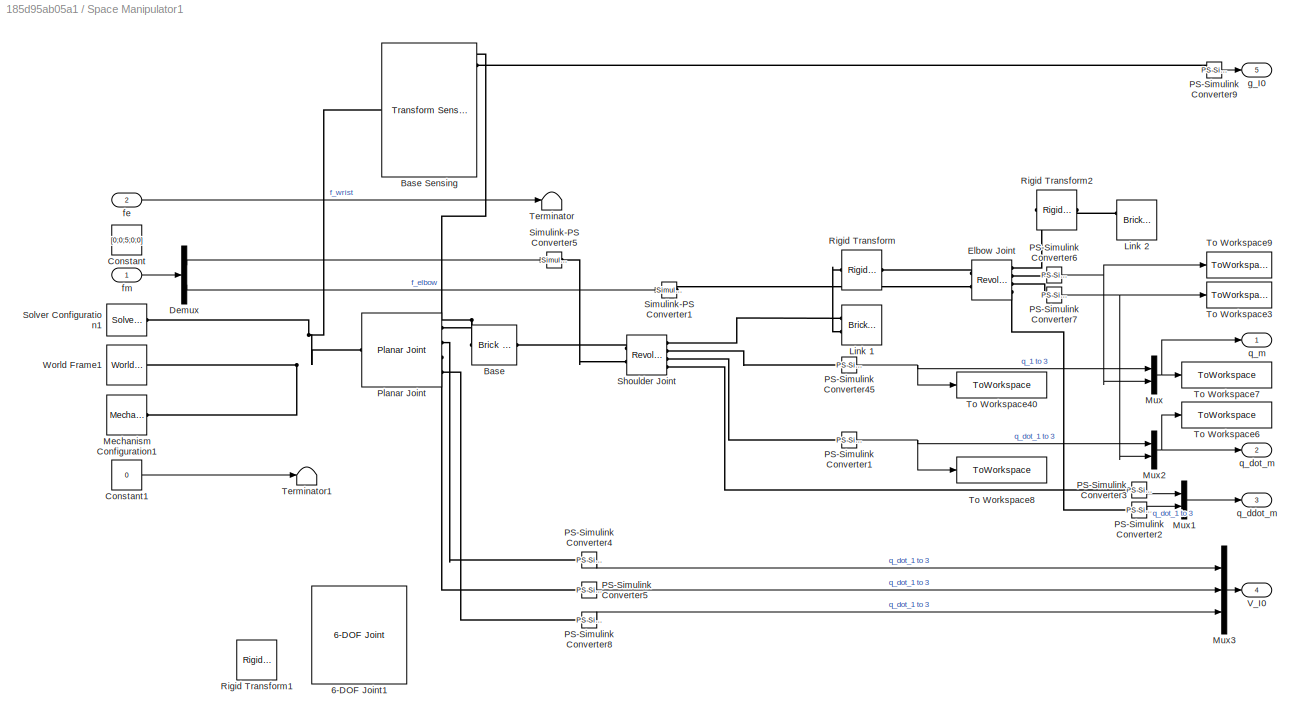
BLOCK [SubSystem] Space Manipulator1
  Ports = [2, 5]
  RequestExecContextInheritance = off
BLOCK [Reference] Space Manipulator1/6-DOF Joint1  REF=sm_lib/Joints/6-DOF Joint
  Commented = on
  Ports = [0, 0, 0, 0, 0, 2, 1]
  SourceBlock = sm_lib/Joints/6-DOF Joint
  SourceProductBaseCode = MS
  SourceType = 6-DOF Joint
BLOCK [Reference] Space Manipulator1/Base  REF=sm_lib/Body Elements/Brick Solid
  Ports = [0, 0, 0, 0, 0, 1, 1]
  SourceBlock = sm_lib/Body Elements/Brick Solid
  SourceProductBaseCode = MS
  SourceType = Brick Solid
BLOCK [Reference] Space Manipulator1/Base Sensing  REF=sm_lib/Frames and
Transforms/Transform
Sensor
  Ports = [0, 0, 0, 0, 0, 1, 11]
  SourceBlock = sm_lib/Frames and\nTransforms/Transform\nSensor
  SourceProductBaseCode = MS
  SourceType = Transform\nSensor
BLOCK [Constant] Space Manipulator1/Constant
  Commented = on
  Value = [0;0;5;0;0]
BLOCK [Constant] Space Manipulator1/Constant1
  Value = 0
BLOCK [Demux] Space Manipulator1/Demux
  Outputs = 2
  Ports = [1, 2]
BLOCK [Reference] Space Manipulator1/Elbow Joint  REF=sm_lib/Joints/Revolute Joint
  Ports = [0, 0, 0, 0, 0, 2, 4]
  SourceBlock = sm_lib/Joints/Revolute Joint
  SourceProductBaseCode = MS
  SourceType = Revolute Joint
BLOCK [Reference] Space Manipulator1/Link 1   REF=sm_lib/Body Elements/Brick Solid
  Ports = [0, 0, 0, 0, 0, 2, 1]
  SourceBlock = sm_lib/Body Elements/Brick Solid
  SourceProductBaseCode = MS
  SourceType = Brick Solid
BLOCK [Reference] Space Manipulator1/Link 2  REF=sm_lib/Body Elements/Brick Solid
  Ports = [0, 0, 0, 0, 0, 2, 1]
  SourceBlock = sm_lib/Body Elements/Brick Solid
  SourceProductBaseCode = MS
  SourceType = Brick Solid
BLOCK [Reference] Space Manipulator1/Mechanism Configuration1  REF=sm_lib/Utilities/Mechanism
Configuration
  Ports = [0, 0, 0, 0, 0, 0, 1]
  SourceBlock = sm_lib/Utilities/Mechanism\nConfiguration
  SourceProductBaseCode = MS
  SourceType = Mechanism\nConfiguration
BLOCK [Mux] Space Manipulator1/Mux
  DisplayOption = bar
  Inputs = 2
  Ports = [2, 1]
BLOCK [Mux] Space Manipulator1/Mux1
  DisplayOption = bar
  Inputs = 2
  Ports = [2, 1]
BLOCK [Mux] Space Manipulator1/Mux2
  DisplayOption = bar
  Inputs = 2
  Ports = [2, 1]
BLOCK [Mux] Space Manipulator1/Mux3
  DisplayOption = bar
  Inputs = 3
  Ports = [3, 1]
BLOCK [Reference] Space Manipulator1/PS-Simulink Converter1  REF=nesl_utility/PS-Simulink
Converter
  Ports = [0, 1, 0, 0, 0, 1]
  SourceBlock = nesl_utility/PS-Simulink\nConverter
  SourceProductBaseCode = PW,SS
  SourceType = PS-Simulink\nConverter
BLOCK [Reference] Space Manipulator1/PS-Simulink Converter2  REF=nesl_utility/PS-Simulink
Converter
  Ports = [0, 1, 0, 0, 0, 1]
  SourceBlock = nesl_utility/PS-Simulink\nConverter
  SourceProductBaseCode = PW,SS
  SourceType = PS-Simulink\nConverter
BLOCK [Reference] Space Manipulator1/PS-Simulink Converter3  REF=nesl_utility/PS-Simulink
Converter
  Ports = [0, 1, 0, 0, 0, 1]
  SourceBlock = nesl_utility/PS-Simulink\nConverter
  SourceProductBaseCode = PW,SS
  SourceType = PS-Simulink\nConverter
BLOCK [Reference] Space Manipulator1/PS-Simulink Converter4  REF=nesl_utility/PS-Simulink
Converter
  Ports = [0, 1, 0, 0, 0, 1]
  SourceBlock = nesl_utility/PS-Simulink\nConverter
  SourceProductBaseCode = PW,SS
  SourceType = PS-Simulink\nConverter
BLOCK [Reference] Space Manipulator1/PS-Simulink Converter45  REF=nesl_utility/PS-Simulink
Converter
  Ports = [0, 1, 0, 0, 0, 1]
  SourceBlock = nesl_utility/PS-Simulink\nConverter
  SourceProductBaseCode = PW,SS
  SourceType = PS-Simulink\nConverter
BLOCK [Reference] Space Manipulator1/PS-Simulink Converter5  REF=nesl_utility/PS-Simulink
Converter
  Ports = [0, 1, 0, 0, 0, 1]
  SourceBlock = nesl_utility/PS-Simulink\nConverter
  SourceProductBaseCode = PW,SS
  SourceType = PS-Simulink\nConverter
BLOCK [Reference] Space Manipulator1/PS-Simulink Converter6  REF=nesl_utility/PS-Simulink
Converter
  Ports = [0, 1, 0, 0, 0, 1]
  SourceBlock = nesl_utility/PS-Simulink\nConverter
  SourceProductBaseCode = PW,SS
  SourceType = PS-Simulink\nConverter
BLOCK [Reference] Space Manipulator1/PS-Simulink Converter7  REF=nesl_utility/PS-Simulink
Converter
  Ports = [0, 1, 0, 0, 0, 1]
  SourceBlock = nesl_utility/PS-Simulink\nConverter
  SourceProductBaseCode = PW,SS
  SourceType = PS-Simulink\nConverter
BLOCK [Reference] Space Manipulator1/PS-Simulink Converter8  REF=nesl_utility/PS-Simulink
Converter
  Ports = [0, 1, 0, 0, 0, 1]
  SourceBlock = nesl_utility/PS-Simulink\nConverter
  SourceProductBaseCode = PW,SS
  SourceType = PS-Simulink\nConverter
BLOCK [Reference] Space Manipulator1/PS-Simulink Converter9  REF=nesl_utility/PS-Simulink
Converter
  Ports = [0, 1, 0, 0, 0, 1]
  SourceBlock = nesl_utility/PS-Simulink\nConverter
  SourceProductBaseCode = PW,SS
  SourceType = PS-Simulink\nConverter
BLOCK [Reference] Space Manipulator1/Planar Joint  REF=sm_lib/Joints/Planar Joint
  Ports = [0, 0, 0, 0, 0, 1, 4]
  SourceBlock = sm_lib/Joints/Planar Joint
  SourceProductBaseCode = MS
  SourceType = Planar Joint
BLOCK [Reference] Space Manipulator1/Rigid Transform  REF=sm_lib/Frames and
Transforms/Rigid
Transform
  Ports = [0, 0, 0, 0, 0, 1, 1]
  SourceBlock = sm_lib/Frames and\nTransforms/Rigid\nTransform
  SourceProductBaseCode = MS
  SourceType = Rigid\nTransform
BLOCK [Reference] Space Manipulator1/Rigid Transform1  REF=sm_lib/Frames and
Transforms/Rigid
Transform
  Commented = on
  Ports = [0, 0, 0, 0, 0, 1, 1]
  SourceBlock = sm_lib/Frames and\nTransforms/Rigid\nTransform
  SourceProductBaseCode = MS
  SourceType = Rigid\nTransform
BLOCK [Reference] Space Manipulator1/Rigid Transform2  REF=sm_lib/Frames and
Transforms/Rigid
Transform
  Ports = [0, 0, 0, 0, 0, 1, 1]
  SourceBlock = sm_lib/Frames and\nTransforms/Rigid\nTransform
  SourceProductBaseCode = MS
  SourceType = Rigid\nTransform
BLOCK [Reference] Space Manipulator1/Shoulder Joint  REF=sm_lib/Joints/Revolute Joint
  Ports = [0, 0, 0, 0, 0, 2, 4]
  SourceBlock = sm_lib/Joints/Revolute Joint
  SourceProductBaseCode = MS
  SourceType = Revolute Joint
BLOCK [Reference] Space Manipulator1/Simulink-PS Converter1  REF=nesl_utility/Simulink-PS
Converter
  Ports = [1, 0, 0, 0, 0, 0, 1]
  SourceBlock = nesl_utility/Simulink-PS\nConverter
  SourceProductBaseCode = PW,SS
  SourceType = Simulink-PS\nConverter
BLOCK [Reference] Space Manipulator1/Simulink-PS Converter5  REF=nesl_utility/Simulink-PS
Converter
  Ports = [1, 0, 0, 0, 0, 0, 1]
  SourceBlock = nesl_utility/Simulink-PS\nConverter
  SourceProductBaseCode = PW,SS
  SourceType = Simulink-PS\nConverter
BLOCK [Reference] Space Manipulator1/Solver Configuration1  REF=nesl_utility/Solver
Configuration
  Ports = [0, 0, 0, 0, 0, 0, 1]
  SourceBlock = nesl_utility/Solver\nConfiguration
  SourceProductBaseCode = PW,SS
  SourceType = Solver\nConfiguration
BLOCK [Terminator] Space Manipulator1/Terminator
BLOCK [Terminator] Space Manipulator1/Terminator1
BLOCK [ToWorkspace] Space Manipulator1/To Workspace3
  FixptAsFi = on
  MaxDataPoints = inf
  Ports = [1]
  SampleTime = -1
  VariableName = q_dot_elbow
BLOCK [ToWorkspace] Space Manipulator1/To Workspace40
  FixptAsFi = on
  MaxDataPoints = inf
  Ports = [1]
  SampleTime = -1
  VariableName = q_shoulder
BLOCK [ToWorkspace] Space Manipulator1/To Workspace6
  FixptAsFi = on
  MaxDataPoints = inf
  Ports = [1]
  SampleTime = -1
  VariableName = q_dot_m
BLOCK [ToWorkspace] Space Manipulator1/To Workspace7
  FixptAsFi = on
  MaxDataPoints = inf
  Ports = [1]
  SampleTime = -1
  VariableName = q_m
BLOCK [ToWorkspace] Space Manipulator1/To Workspace8
  FixptAsFi = on
  MaxDataPoints = inf
  Ports = [1]
  SampleTime = -1
  VariableName = q_dot_shoulder
BLOCK [ToWorkspace] Space Manipulator1/To Workspace9
  FixptAsFi = on
  MaxDataPoints = inf
  Ports = [1]
  SampleTime = -1
  VariableName = q_elbow
BLOCK [Outport] Space Manipulator1/V_I0
  Port = 4
BLOCK [Reference] Space Manipulator1/World Frame1  REF=sm_lib/Frames and
Transforms/World Frame
  Ports = [0, 0, 0, 0, 0, 0, 1]
  SourceBlock = sm_lib/Frames and\nTransforms/World Frame
  SourceProductBaseCode = MS
  SourceType = World Frame
BLOCK [Inport] Space Manipulator1/fe
  Port = 2
BLOCK [Inport] Space Manipulator1/fm
BLOCK [Outport] Space Manipulator1/g_I0
  Port = 5
BLOCK [Outport] Space Manipulator1/q_ddot_m
  Port = 3
BLOCK [Outport] Space Manipulator1/q_dot_m
  Port = 2
BLOCK [Outport] Space Manipulator1/q_m
BLOCK [Sum] Subtract
  IconShape = rectangular
  Inputs = +-
  Ports = [2, 1]
BLOCK [Sum] Subtract1
  IconShape = rectangular
  Inputs = +-
  Ports = [2, 1]
BLOCK [Sum] Subtract2
  IconShape = rectangular
  Inputs = +-
  Ports = [2, 1]
BLOCK [Sum] Subtract3
  IconShape = rectangular
  Inputs = +-
  Ports = [2, 1]
BLOCK [ToWorkspace] To Workspace1
  FixptAsFi = on
  MaxDataPoints = inf
  Ports = [1]
  SampleTime = -1
  SaveFormat = Timeseries
  VariableName = V
BLOCK [ToWorkspace] To Workspace2
  FixptAsFi = on
  MaxDataPoints = inf
  Ports = [1]
  SampleTime = -1
  SaveFormat = Timeseries
  VariableName = V_ref
BLOCK [ToWorkspace] To Workspace3
  FixptAsFi = on
  MaxDataPoints = inf
  Ports = [1]
  SampleTime = -1
  SaveFormat = Timeseries
  VariableName = qddot
BLOCK [ToWorkspace] To Workspace4
  FixptAsFi = on
  MaxDataPoints = inf
  Ports = [1]
  SampleTime = -1
  SaveFormat = Timeseries
  VariableName = qddot_ref
BLOCK [Scope] V
  Floating = off
  NumInputPorts = 1
  Ports = [1]
  ScopeSpecificationString = Simulink.scopes.TimeScopeBlockCfg('CurrentConfiguration', extmgr.ConfigurationSet(extmgr.Configuration('Core','General UI',true),extmgr.Configuration('Core','Source UI',true),extmgr.Configuration('Sources','WiredSimulink',true,'DataLoggingVariableName','ScopeData9'),extmgr.Configuration('Visuals','Time Domain',true,'SerializedDisplays',{struct('MinYLimReal','-0.00413','MaxYLimReal','0.00212','YLab...<+1662ch>
BLOCK [SubSystem] old model1
  Commented = on
  Ports = []
  RequestExecContextInheritance = off
BLOCK [Constant] old model1/Constant
  Commented = on
  Value = Xi_m
  VectorParams1D = off
BLOCK [Constant] old model1/Constant1
  Commented = on
  Value = f_0
  VectorParams1D = off
BLOCK [Constant] old model1/Constant3
  Commented = on
  Value = [0.1;0.1]
  VectorParams1D = off
BLOCK [Constant] old model1/Constant4
  Commented = on
  Value = Xi_m_matrix
  VectorParams1D = off
BLOCK [From] old model1/From
  Commented = on
  GotoTag = qqdot
  TagVisibility = global
BLOCK [From] old model1/From1
  Commented = on
  GotoTag = V_I0
  TagVisibility = global
BLOCK [From] old model1/From2
  Commented = on
  GotoTag = P
  TagVisibility = global
BLOCK [Goto] old model1/Goto1
  Commented = on
  GotoTag = Xi_m_matrix
  TagVisibility = global
BLOCK [Goto] old model1/Goto15
  Commented = on
  GotoTag = L
  TagVisibility = global
BLOCK [Goto] old model1/Goto16
  Commented = on
  GotoTag = Mass_Matrix
  TagVisibility = global
BLOCK [Goto] old model1/Goto17
  Commented = on
  GotoTag = A_connection
  TagVisibility = global
BLOCK [Goto] old model1/Goto2
  Commented = on
  GotoTag = Xi_m
  TagVisibility = global
BLOCK [Goto] old model1/Goto3
  Commented = on
  GotoTag = qqdot
  TagVisibility = global
BLOCK [Goto] old model1/Goto6
  Commented = on
  GotoTag = V_I0
  TagVisibility = global
BLOCK [Goto] old model1/Goto7
  Commented = on
  GotoTag = P
  TagVisibility = global
BLOCK [SubSystem] old model1/Inverse Dynamics
  Commented = on
  NameLocation = right
  Ports = [5, 2]
  RequestExecContextInheritance = off
BLOCK [SubSystem] old model1/Inverse Dynamics/Euler Poincare
  Ports = [3, 1]
  RequestExecContextInheritance = off
BLOCK [Sum] old model1/Inverse Dynamics/Euler Poincare/Add
  IconShape = rectangular
  Inputs = +-
  Ports = [2, 1]
BLOCK [Constant] old model1/Inverse Dynamics/Euler Poincare/Constant
  Value = iota0
BLOCK [SubSystem] old model1/Inverse Dynamics/Euler Poincare/MATLAB Function
  ErrorFcn = Stateflow.Translate.translate
  PermitHierarchicalResolution = ExplicitOnly
  Ports = [2, 1]
  RequestExecContextInheritance = off
  SFBlockType = MATLAB Function
  TreatAsAtomicUnit = on
BLOCK [Demux] old model1/Inverse Dynamics/Euler Poincare/MATLAB Function/ Demux 
  Outputs = 1
  Ports = [1, 1]
BLOCK [S-Function] old model1/Inverse Dynamics/Euler Poincare/MATLAB Function/ SFunction 
  EnableBusSupport = on
  FunctionName = sf_sfun
  PortCounts = [2 2]
  Ports = [2, 2]
  SFcnIsStateOwnerBlock = off
  SFunctionDeploymentMode = off
  Tag = Stateflow S-Function 52
BLOCK [Terminator] old model1/Inverse Dynamics/Euler Poincare/MATLAB Function/ Terminator 
BLOCK [Inport] old model1/Inverse Dynamics/Euler Poincare/MATLAB Function/V
BLOCK [Outport] old model1/Inverse Dynamics/Euler Poincare/MATLAB Function/adj_low
BLOCK [Inport] old model1/Inverse Dynamics/Euler Poincare/MATLAB Function/iota0
  Port = 2
BLOCK [Product] old model1/Inverse Dynamics/Euler Poincare/Matrix Multiply
  Multiplication = Matrix(*)
  Ports = [2, 1]
BLOCK [Inport] old model1/Inverse Dynamics/Euler Poincare/P
BLOCK [Outport] old model1/Inverse Dynamics/Euler Poincare/P_dot
BLOCK [ToWorkspace] old model1/Inverse Dynamics/Euler Poincare/To Workspace
  FixptAsFi = on
  MaxDataPoints = inf
  Ports = [1]
  SampleTime = -1
  SaveFormat = Timeseries
  VariableName = simout
BLOCK [Math] old model1/Inverse Dynamics/Euler Poincare/Transpose
  Operator = transpose
  Ports = [1, 1]
BLOCK [Inport] old model1/Inverse Dynamics/Euler Poincare/V
  Port = 2
BLOCK [Inport] old model1/Inverse Dynamics/Euler Poincare/f_0
  Port = 3
BLOCK [SubSystem] old model1/Inverse Dynamics/Internal Dynamics
  Ports = [2, 1]
  RequestExecContextInheritance = off
BLOCK [Sum] old model1/Inverse Dynamics/Internal Dynamics/Add
  IconShape = rectangular
  Inputs = -+
  Ports = [2, 1]
BLOCK [BusSelector] old model1/Inverse Dynamics/Internal Dynamics/Bus Selector1
  OutputSignals = Lm
  Ports = [1, 1]
BLOCK [BusSelector] old model1/Inverse Dynamics/Internal Dynamics/Bus Selector2
  OutputSignals = signal3
  Ports = [1, 1]
BLOCK [BusSelector] old model1/Inverse Dynamics/Internal Dynamics/Bus Selector3
  OutputSignals = signal1,signal2
  Ports = [1, 2]
BLOCK [SubSystem] old model1/Inverse Dynamics/Internal Dynamics/C_hat
  Ports = [6, 1]
  RequestExecContextInheritance = off
BLOCK [Inport] old model1/Inverse Dynamics/Internal Dynamics/C_hat/<Lm>
  Port = 5
BLOCK [SubSystem] old model1/Inverse Dynamics/Internal Dynamics/C_hat/C_hat
  ErrorFcn = Stateflow.Translate.translate
  PermitHierarchicalResolution = ExplicitOnly
  Ports = [3, 1]
  RequestExecContextInheritance = off
  SFBlockType = MATLAB Function
  TreatAsAtomicUnit = on
BLOCK [Demux] old model1/Inverse Dynamics/Internal Dynamics/C_hat/C_hat/ Demux 
  Outputs = 1
  Ports = [1, 1]
BLOCK [S-Function] old model1/Inverse Dynamics/Internal Dynamics/C_hat/C_hat/ SFunction 
  EnableBusSupport = on
  FunctionName = sf_sfun
  PortCounts = [3 2]
  Ports = [3, 2]
  SFcnIsStateOwnerBlock = off
  SFunctionDeploymentMode = off
  Tag = Stateflow S-Function 54
BLOCK [Terminator] old model1/Inverse Dynamics/Internal Dynamics/C_hat/C_hat/ Terminator 
BLOCK [Outport] old model1/Inverse Dynamics/Internal Dynamics/C_hat/C_hat/C_hat
BLOCK [Inport] old model1/Inverse Dynamics/Internal Dynamics/C_hat/C_hat/Mm_hat_partial
  Port = 3
BLOCK [Inport] old model1/Inverse Dynamics/Internal Dynamics/C_hat/C_hat/q_dot_m
  Port = 2
BLOCK [Inport] old model1/Inverse Dynamics/Internal Dynamics/C_hat/C_hat/q_m
BLOCK [Outport] old model1/Inverse Dynamics/Internal Dynamics/C_hat/C_hat1
BLOCK [SubSystem] old model1/Inverse Dynamics/Internal Dynamics/C_hat/Lm_partials
  Ports = [2, 1]
  RequestExecContextInheritance = off
BLOCK [Constant] old model1/Inverse Dynamics/Internal Dynamics/C_hat/Lm_partials/Constant
  Value = iota0
BLOCK [Outport] old model1/Inverse Dynamics/Internal Dynamics/C_hat/Lm_partials/Lm_partial
BLOCK [SubSystem] old model1/Inverse Dynamics/Internal Dynamics/C_hat/Lm_partials/Lmpartial
  ErrorFcn = Stateflow.Translate.translate
  PermitHierarchicalResolution = ExplicitOnly
  Ports = [3, 1]
  RequestExecContextInheritance = off
  SFBlockType = MATLAB Function
  TreatAsAtomicUnit = on
BLOCK [Demux] old model1/Inverse Dynamics/Internal Dynamics/C_hat/Lm_partials/Lmpartial/ Demux 
  Outputs = 1
  Ports = [1, 1]
BLOCK [S-Function] old model1/Inverse Dynamics/Internal Dynamics/C_hat/Lm_partials/Lmpartial/ SFunction 
  EnableBusSupport = on
  FunctionName = sf_sfun
  PortCounts = [3 2]
  Ports = [3, 2]
  SFcnIsStateOwnerBlock = off
  SFunctionDeploymentMode = off
  Tag = Stateflow S-Function 55
BLOCK [Terminator] old model1/Inverse Dynamics/Internal Dynamics/C_hat/Lm_partials/Lmpartial/ Terminator 
BLOCK [Outport] old model1/Inverse Dynamics/Internal Dynamics/C_hat/Lm_partials/Lmpartial/Lm_partial
BLOCK [Inport] old model1/Inverse Dynamics/Internal Dynamics/C_hat/Lm_partials/Lmpartial/Xi_m
  Port = 2
BLOCK [Inport] old model1/Inverse Dynamics/Internal Dynamics/C_hat/Lm_partials/Lmpartial/iota0
  Port = 3
BLOCK [Inport] old model1/Inverse Dynamics/Internal Dynamics/C_hat/Lm_partials/Lmpartial/q_m
BLOCK [Inport] old model1/Inverse Dynamics/Internal Dynamics/C_hat/Lm_partials/Xi_m
  Port = 2
BLOCK [Inport] old model1/Inverse Dynamics/Internal Dynamics/C_hat/Lm_partials/q_m
BLOCK [SubSystem] old model1/Inverse Dynamics/Internal Dynamics/C_hat/M_partials
  Ports = [5, 1]
  RequestExecContextInheritance = off
BLOCK [Inport] old model1/Inverse Dynamics/Internal Dynamics/C_hat/M_partials/Lm
  Port = 4
BLOCK [Inport] old model1/Inverse Dynamics/Internal Dynamics/C_hat/M_partials/Lm_partial
  Port = 2
BLOCK [Outport] old model1/Inverse Dynamics/Internal Dynamics/C_hat/M_partials/Mm_partial
BLOCK [SubSystem] old model1/Inverse Dynamics/Internal Dynamics/C_hat/M_partials/Mmpartial
  ErrorFcn = Stateflow.Translate.translate
  PermitHierarchicalResolution = ExplicitOnly
  Ports = [5, 1]
  RequestExecContextInheritance = off
  SFBlockType = MATLAB Function
  TreatAsAtomicUnit = on
BLOCK [Demux] old model1/Inverse Dynamics/Internal Dynamics/C_hat/M_partials/Mmpartial/ Demux 
  Outputs = 1
  Ports = [1, 1]
BLOCK [S-Function] old model1/Inverse Dynamics/Internal Dynamics/C_hat/M_partials/Mmpartial/ SFunction 
  EnableBusSupport = on
  FunctionName = sf_sfun
  PortCounts = [5 2]
  Ports = [5, 2]
  SFcnIsStateOwnerBlock = off
  SFunctionDeploymentMode = off
  Tag = Stateflow S-Function 56
BLOCK [Terminator] old model1/Inverse Dynamics/Internal Dynamics/C_hat/M_partials/Mmpartial/ Terminator 
BLOCK [Inport] old model1/Inverse Dynamics/Internal Dynamics/C_hat/M_partials/Mmpartial/Lm
  Port = 3
BLOCK [Inport] old model1/Inverse Dynamics/Internal Dynamics/C_hat/M_partials/Mmpartial/Lm_partial
  Port = 5
BLOCK [Outport] old model1/Inverse Dynamics/Internal Dynamics/C_hat/M_partials/Mmpartial/Mm_partial
BLOCK [Inport] old model1/Inverse Dynamics/Internal Dynamics/C_hat/M_partials/Mmpartial/Xi_m_Matrix
  Port = 2
BLOCK [Inport] old model1/Inverse Dynamics/Internal Dynamics/C_hat/M_partials/Mmpartial/diag_Mm
  Port = 4
BLOCK [Inport] old model1/Inverse Dynamics/Internal Dynamics/C_hat/M_partials/Mmpartial/q_m
BLOCK [Inport] old model1/Inverse Dynamics/Internal Dynamics/C_hat/M_partials/Xi_m_Matrix
  NameLocation = top
  Port = 3
BLOCK [Inport] old model1/Inverse Dynamics/Internal Dynamics/C_hat/M_partials/diag_Mm
  Port = 5
BLOCK [Inport] old model1/Inverse Dynamics/Internal Dynamics/C_hat/M_partials/q_m
BLOCK [Inport] old model1/Inverse Dynamics/Internal Dynamics/C_hat/Xi_m
  NameLocation = right
  Port = 3
BLOCK [Inport] old model1/Inverse Dynamics/Internal Dynamics/C_hat/Xi_m_Matrix
  Port = 4
BLOCK [Inport] old model1/Inverse Dynamics/Internal Dynamics/C_hat/diag_Mm
  Port = 6
BLOCK [Inport] old model1/Inverse Dynamics/Internal Dynamics/C_hat/q_dot_m
  NameLocation = left
  Port = 2
BLOCK [Inport] old model1/Inverse Dynamics/Internal Dynamics/C_hat/q_m
  NameLocation = left
BLOCK [Product] old model1/Inverse Dynamics/Internal Dynamics/Divide
  Inputs = /*
  Multiplication = Matrix(*)
  Ports = [2, 1]
BLOCK [From] old model1/Inverse Dynamics/Internal Dynamics/From2
  GotoTag = Mass_Matrix
  TagVisibility = global
BLOCK [From] old model1/Inverse Dynamics/Internal Dynamics/From4
  GotoTag = L
  TagVisibility = global
BLOCK [From] old model1/Inverse Dynamics/Internal Dynamics/From5
  GotoTag = Xi_m
  TagVisibility = global
BLOCK [From] old model1/Inverse Dynamics/Internal Dynamics/From6
  GotoTag = Xi_m_matrix
  TagVisibility = global
BLOCK [From] old model1/Inverse Dynamics/Internal Dynamics/From8
  GotoTag = diag_Mm
  TagVisibility = global
BLOCK [Product] old model1/Inverse Dynamics/Internal Dynamics/Matrix Multiply3
  Multiplication = Matrix(*)
  Ports = [2, 1]
BLOCK [Inport] old model1/Inverse Dynamics/Internal Dynamics/f_m
BLOCK [Outport] old model1/Inverse Dynamics/Internal Dynamics/q_ddot
BLOCK [Inport] old model1/Inverse Dynamics/Internal Dynamics/q_m q_dot_m
  Port = 2
BLOCK [Inport] old model1/Inverse Dynamics/P
  Port = 3
BLOCK [Outport] old model1/Inverse Dynamics/P_dot
  Port = 2
BLOCK [Inport] old model1/Inverse Dynamics/V
  Port = 4
BLOCK [Inport] old model1/Inverse Dynamics/f_0
  Port = 5
BLOCK [Inport] old model1/Inverse Dynamics/f_m
BLOCK [Outport] old model1/Inverse Dynamics/q_ddot
BLOCK [Inport] old model1/Inverse Dynamics/q_m q_dot_m
  Port = 2
BLOCK [SubSystem] old model1/time-dependent variables' calculations
  Commented = on
  Ports = [2, 6]
  RequestExecContextInheritance = off
BLOCK [SubSystem] old model1/time-dependent variables' calculations/ 
  ErrorFcn = Stateflow.Translate.translate
  PermitHierarchicalResolution = ExplicitOnly
  Ports = [2, 3]
  RequestExecContextInheritance = off
  SFBlockType = MATLAB Function
  TreatAsAtomicUnit = on
BLOCK [Demux] old model1/time-dependent variables' calculations/ / Demux 
  Outputs = 1
  Ports = [1, 1]
BLOCK [S-Function] old model1/time-dependent variables' calculations/ / SFunction 
  EnableBusSupport = on
  FunctionName = sf_sfun
  PortCounts = [2 4]
  Ports = [2, 4]
  SFcnIsStateOwnerBlock = off
  SFunctionDeploymentMode = off
  Tag = Stateflow S-Function 57
BLOCK [Terminator] old model1/time-dependent variables' calculations/ / Terminator 
BLOCK [Outport] old model1/time-dependent variables' calculations/ /L0
BLOCK [Outport] old model1/time-dependent variables' calculations/ /Lm
  Port = 3
BLOCK [Outport] old model1/time-dependent variables' calculations/ /Lm0
  Port = 2
BLOCK [Inport] old model1/time-dependent variables' calculations/ /Xi_m
  Port = 2
BLOCK [Inport] old model1/time-dependent variables' calculations/ /q_m
BLOCK [Outport] old model1/time-dependent variables' calculations/A
  Port = 4
BLOCK [BusCreator] old model1/time-dependent variables' calculations/Bus Creator
  DisplayOption = bar
  InheritFromInputs = on
  Inputs = 2
  Ports = [2, 1]
BLOCK [BusCreator] old model1/time-dependent variables' calculations/Bus Creator1
  DisplayOption = bar
  InheritFromInputs = on
  Inputs = 3
  Ports = [3, 1]
BLOCK [BusCreator] old model1/time-dependent variables' calculations/Bus Creator2
  DisplayOption = bar
  InheritFromInputs = on
  Inputs = 3
  Ports = [3, 1]
BLOCK [Constant] old model1/time-dependent variables' calculations/Constant
  Value = diag_M
  VectorParams1D = off
BLOCK [Constant] old model1/time-dependent variables' calculations/Constant3
  Value = iota0
  VectorParams1D = off
BLOCK [From] old model1/time-dependent variables' calculations/From1
  GotoTag = Xi_m_matrix
  TagVisibility = global
BLOCK [From] old model1/time-dependent variables' calculations/From4
  GotoTag = Xi_m
  TagVisibility = global
BLOCK [Integrator] old model1/time-dependent variables' calculations/Integrator1
  Ports = [1, 1]
BLOCK [Integrator] old model1/time-dependent variables' calculations/Integrator2
  Ports = [1, 1]
BLOCK [Integrator] old model1/time-dependent variables' calculations/Integrator3
  Ports = [1, 1]
BLOCK [Outport] old model1/time-dependent variables' calculations/Lm
BLOCK [Outport] old model1/time-dependent variables' calculations/M
  Port = 6
BLOCK [SubSystem] old model1/time-dependent variables' calculations/MATLAB Function
  ErrorFcn = Stateflow.Translate.translate
  PermitHierarchicalResolution = ExplicitOnly
  Ports = [2, 1]
  RequestExecContextInheritance = off
  SFBlockType = MATLAB Function
  TreatAsAtomicUnit = on
BLOCK [Demux] old model1/time-dependent variables' calculations/MATLAB Function/ Demux 
  Outputs = 1
  Ports = [1, 1]
BLOCK [S-Function] old model1/time-dependent variables' calculations/MATLAB Function/ SFunction 
  EnableBusSupport = on
  FunctionName = sf_sfun
  PortCounts = [2 2]
  Ports = [2, 2]
  SFcnIsStateOwnerBlock = off
  SFunctionDeploymentMode = off
  Tag = Stateflow S-Function 58
BLOCK [Terminator] old model1/time-dependent variables' calculations/MATLAB Function/ Terminator 
BLOCK [Outport] old model1/time-dependent variables' calculations/MATLAB Function/A
BLOCK [Inport] old model1/time-dependent variables' calculations/MATLAB Function/M0
BLOCK [Inport] old model1/time-dependent variables' calculations/MATLAB Function/M0m
  Port = 2
BLOCK [SubSystem] old model1/time-dependent variables' calculations/Mass Matrix Blocks
  Ports = [5, 3]
  RequestExecContextInheritance = off
BLOCK [Sum] old model1/time-dependent variables' calculations/Mass Matrix Blocks/Add
  IconShape = rectangular
  Ports = [2, 1]
BLOCK [Goto] old model1/time-dependent variables' calculations/Mass Matrix Blocks/Goto5
  GotoTag = diag_Mm
  TagVisibility = global
BLOCK [Inport] old model1/time-dependent variables' calculations/Mass Matrix Blocks/Lm
  Port = 2
BLOCK [Inport] old model1/time-dependent variables' calculations/Mass Matrix Blocks/Lm0
  Port = 5
BLOCK [Outport] old model1/time-dependent variables' calculations/Mass Matrix Blocks/M0
BLOCK [Outport] old model1/time-dependent variables' calculations/Mass Matrix Blocks/M0m
  Port = 2
BLOCK [SubSystem] old model1/time-dependent variables' calculations/Mass Matrix Blocks/MATLAB Function
  ErrorFcn = Stateflow.Translate.translate
  PermitHierarchicalResolution = ExplicitOnly
  Ports = [1, 2]
  RequestExecContextInheritance = off
  SFBlockType = MATLAB Function
  TreatAsAtomicUnit = on
BLOCK [Demux] old model1/time-dependent variables' calculations/Mass Matrix Blocks/MATLAB Function/ Demux 
  Outputs = 1
  Ports = [1, 1]
BLOCK [S-Function] old model1/time-dependent variables' calculations/Mass Matrix Blocks/MATLAB Function/ SFunction 
  EnableBusSupport = on
  FunctionName = sf_sfun
  PortCounts = [1 3]
  Ports = [1, 3]
  SFcnIsStateOwnerBlock = off
  SFunctionDeploymentMode = off
  Tag = Stateflow S-Function 59
BLOCK [Terminator] old model1/time-dependent variables' calculations/Mass Matrix Blocks/MATLAB Function/ Terminator 
BLOCK [Inport] old model1/time-dependent variables' calculations/Mass Matrix Blocks/MATLAB Function/diag_M
BLOCK [Outport] old model1/time-dependent variables' calculations/Mass Matrix Blocks/MATLAB Function/m0_frak
BLOCK [Outport] old model1/time-dependent variables' calculations/Mass Matrix Blocks/MATLAB Function/m_diag
  Port = 2
BLOCK [Product] old model1/time-dependent variables' calculations/Mass Matrix Blocks/Matrix Multiply
  Inputs = 3
  Multiplication = Matrix(*)
  Ports = [3, 1]
BLOCK [Product] old model1/time-dependent variables' calculations/Mass Matrix Blocks/Matrix Multiply1
  Inputs = 5
  Multiplication = Matrix(*)
  Ports = [5, 1]
BLOCK [Product] old model1/time-dependent variables' calculations/Mass Matrix Blocks/Matrix Multiply2
  Inputs = 5
  Multiplication = Matrix(*)
  Ports = [5, 1]
BLOCK [Product] old model1/time-dependent variables' calculations/Mass Matrix Blocks/Matrix Multiply3
  Inputs = 3
  Multiplication = Matrix(*)
  Ports = [3, 1]
BLOCK [Outport] old model1/time-dependent variables' calculations/Mass Matrix Blocks/Mm
  Port = 3
BLOCK [Math] old model1/time-dependent variables' calculations/Mass Matrix Blocks/Transpose
  Operator = transpose
  Ports = [1, 1]
BLOCK [Math] old model1/time-dependent variables' calculations/Mass Matrix Blocks/Transpose1
  Operator = transpose
  Ports = [1, 1]
BLOCK [Math] old model1/time-dependent variables' calculations/Mass Matrix Blocks/Transpose2
  Operator = transpose
  Ports = [1, 1]
BLOCK [Math] old model1/time-dependent variables' calculations/Mass Matrix Blocks/Transpose3
  Operator = transpose
  Ports = [1, 1]
BLOCK [Inport] old model1/time-dependent variables' calculations/Mass Matrix Blocks/Xi_m_matrix
  Port = 3
BLOCK [Inport] old model1/time-dependent variables' calculations/Mass Matrix Blocks/diag_M
BLOCK [Inport] old model1/time-dependent variables' calculations/Mass Matrix Blocks/iota0
  Port = 4
BLOCK [Outport] old model1/time-dependent variables' calculations/P
  Port = 3
BLOCK [Inport] old model1/time-dependent variables' calculations/P_dot
  Port = 2
BLOCK [Outport] old model1/time-dependent variables' calculations/V
  Port = 5
BLOCK [SubSystem] old model1/time-dependent variables' calculations/V_I0
  ErrorFcn = Stateflow.Translate.translate
  PermitHierarchicalResolution = ExplicitOnly
  Ports = [4, 1]
  RequestExecContextInheritance = off
  SFBlockType = MATLAB Function
  TreatAsAtomicUnit = on
BLOCK [Demux] old model1/time-dependent variables' calculations/V_I0/ Demux 
  Outputs = 1
  Ports = [1, 1]
BLOCK [S-Function] old model1/time-dependent variables' calculations/V_I0/ SFunction 
  EnableBusSupport = on
  FunctionName = sf_sfun
  PortCounts = [4 2]
  Ports = [4, 2]
  SFcnIsStateOwnerBlock = off
  SFunctionDeploymentMode = off
  Tag = Stateflow S-Function 60
BLOCK [Terminator] old model1/time-dependent variables' calculations/V_I0/ Terminator 
BLOCK [Inport] old model1/time-dependent variables' calculations/V_I0/A_connection
  Port = 2
BLOCK [Inport] old model1/time-dependent variables' calculations/V_I0/M0
  Port = 4
BLOCK [Inport] old model1/time-dependent variables' calculations/V_I0/P
BLOCK [Outport] old model1/time-dependent variables' calculations/V_I0/V_I0
BLOCK [Inport] old model1/time-dependent variables' calculations/V_I0/q_dot_m
  Port = 3
BLOCK [Outport] old model1/time-dependent variables' calculations/q
  Port = 2
BLOCK [Inport] old model1/time-dependent variables' calculations/q_ddot_m
BLOCK [From] q_ddot_dyn1
  GotoTag = q_ddot_m
  TagVisibility = global
BLOCK [Scope] q_ddots
  Floating = off
  NumInputPorts = 1
  Ports = [1]
  ScopeSpecificationString = Simulink.scopes.TimeScopeBlockCfg('CurrentConfiguration', extmgr.ConfigurationSet(extmgr.Configuration('Core','General UI',true),extmgr.Configuration('Core','Source UI',true),extmgr.Configuration('Sources','WiredSimulink',true,'DataLoggingVariableName','ScopeData10'),extmgr.Configuration('Visuals','Time Domain',true,'SerializedDisplays',{struct('MinYLimReal','-0.15073','MaxYLimReal','0.2721','YLab...<+1651ch>
BLOCK [Scope] q_dots
  Floating = off
  NumInputPorts = 1
  Ports = [1]
  ScopeSpecificationString = Simulink.scopes.TimeScopeBlockCfg('CurrentConfiguration', extmgr.ConfigurationSet(extmgr.Configuration('Core','General UI',true),extmgr.Configuration('Core','Source UI',true),extmgr.Configuration('Sources','WiredSimulink',true,'DataLoggingVariableName','ScopeData11'),extmgr.Configuration('Visuals','Time Domain',true,'SerializedDisplays',{struct('MinYLimReal','-0.00000017','MaxYLimReal','0.00000021...<+1628ch>
BLOCK [From] q_dyn1
  GotoTag = qqdot
  TagVisibility = global
BLOCK [From] q_ref1
  GotoTag = qqdot_ref
  TagVisibility = global
BLOCK [Scope] qs
  Floating = off
  NumInputPorts = 1
  Ports = [1]
  ScopeSpecificationString = Simulink.scopes.TimeScopeBlockCfg('CurrentConfiguration', extmgr.ConfigurationSet(extmgr.Configuration('Core','General UI',true),extmgr.Configuration('Core','Source UI',true),extmgr.Configuration('Sources','WiredSimulink',true,'DataLoggingVariableName','ScopeData12'),extmgr.Configuration('Visuals','Time Domain',true,'SerializedDisplays',{struct('MinYLimReal','-0.35544','MaxYLimReal','0.36115','YLa...<+1608ch>
BLOCK [SubSystem] time-dependent variables' calculations2
  Ports = [2, 6]
  RequestExecContextInheritance = off
BLOCK [SubSystem] time-dependent variables' calculations2/ 
  ErrorFcn = Stateflow.Translate.translate
  PermitHierarchicalResolution = ExplicitOnly
  Ports = [2, 3]
  RequestExecContextInheritance = off
  SFBlockType = MATLAB Function
  TreatAsAtomicUnit = on
BLOCK [Demux] time-dependent variables' calculations2/ / Demux 
  Outputs = 1
  Ports = [1, 1]
BLOCK [S-Function] time-dependent variables' calculations2/ / SFunction 
  EnableBusSupport = on
  FunctionName = sf_sfun
  PortCounts = [2 4]
  Ports = [2, 4]
  SFcnIsStateOwnerBlock = off
  SFunctionDeploymentMode = off
  Tag = Stateflow S-Function 61
BLOCK [Terminator] time-dependent variables' calculations2/ / Terminator 
BLOCK [Outport] time-dependent variables' calculations2/ /L0
BLOCK [Outport] time-dependent variables' calculations2/ /Lm
  Port = 3
BLOCK [Outport] time-dependent variables' calculations2/ /Lm0
  Port = 2
BLOCK [Inport] time-dependent variables' calculations2/ /Xi_m
  Port = 2
BLOCK [Inport] time-dependent variables' calculations2/ /q_m
BLOCK [Outport] time-dependent variables' calculations2/A
  Port = 4
BLOCK [SubSystem] time-dependent variables' calculations2/A_connection
  Ports = [2, 1]
  RequestExecContextInheritance = off
BLOCK [Product] time-dependent variables' calculations2/A_connection/Divide
  Inputs = /*
  Multiplication = Matrix(*)
  Ports = [2, 1]
BLOCK [Inport] time-dependent variables' calculations2/A_connection/M0
BLOCK [Inport] time-dependent variables' calculations2/A_connection/M0m
  Port = 2
BLOCK [Outport] time-dependent variables' calculations2/A_connection/Out1
BLOCK [BusCreator] time-dependent variables' calculations2/Bus Creator
  DisplayOption = bar
  InheritFromInputs = on
  Inputs = 2
  Ports = [2, 1]
BLOCK [BusCreator] time-dependent variables' calculations2/Bus Creator1
  DisplayOption = bar
  InheritFromInputs = on
  Inputs = 3
  Ports = [3, 1]
BLOCK [BusCreator] time-dependent variables' calculations2/Bus Creator2
  DisplayOption = bar
  InheritFromInputs = on
  Inputs = 3
  Ports = [3, 1]
BLOCK [Constant] time-dependent variables' calculations2/Constant
  Value = diag_M
  VectorParams1D = off
BLOCK [Constant] time-dependent variables' calculations2/Constant1
  Value = q_dot_m
  VectorParams1D = off
BLOCK [Constant] time-dependent variables' calculations2/Constant2
  Value = q_m
  VectorParams1D = off
BLOCK [Constant] time-dependent variables' calculations2/Constant3
  Value = P
  VectorParams1D = off
BLOCK [From] time-dependent variables' calculations2/From1
  GotoTag = Xi_m_matrix
  TagVisibility = global
BLOCK [From] time-dependent variables' calculations2/From4
  GotoTag = Xi_m
  TagVisibility = global
BLOCK [Integrator] time-dependent variables' calculations2/Integrator2
  InitialCondition = q_dot_m
  InitialConditionSource = external
  Ports = [2, 1]
BLOCK [Integrator] time-dependent variables' calculations2/Integrator3
  InitialConditionSource = external
  Ports = [2, 1]
BLOCK [Integrator] time-dependent variables' calculations2/Integrator4
  InitialConditionSource = external
  Ports = [2, 1]
BLOCK [Outport] time-dependent variables' calculations2/Lm
  Port = 3
BLOCK [Outport] time-dependent variables' calculations2/M
BLOCK [SubSystem] time-dependent variables' calculations2/MATLAB Function
  Commented = on
  ErrorFcn = Stateflow.Translate.translate
  PermitHierarchicalResolution = ExplicitOnly
  Ports = [2, 1]
  RequestExecContextInheritance = off
  SFBlockType = MATLAB Function
  TreatAsAtomicUnit = on
BLOCK [Demux] time-dependent variables' calculations2/MATLAB Function/ Demux 
  Outputs = 1
  Ports = [1, 1]
BLOCK [S-Function] time-dependent variables' calculations2/MATLAB Function/ SFunction 
  EnableBusSupport = on
  FunctionName = sf_sfun
  PortCounts = [2 2]
  Ports = [2, 2]
  SFcnIsStateOwnerBlock = off
  SFunctionDeploymentMode = off
  Tag = Stateflow S-Function 62
BLOCK [Terminator] time-dependent variables' calculations2/MATLAB Function/ Terminator 
BLOCK [Outport] time-dependent variables' calculations2/MATLAB Function/A
BLOCK [Inport] time-dependent variables' calculations2/MATLAB Function/M0
BLOCK [Inport] time-dependent variables' calculations2/MATLAB Function/M0m
  Port = 2
BLOCK [SubSystem] time-dependent variables' calculations2/Mass Matrix Blocks
  Ports = [4, 3]
  RequestExecContextInheritance = off
BLOCK [Sum] time-dependent variables' calculations2/Mass Matrix Blocks/Add
  IconShape = rectangular
  Ports = [2, 1]
BLOCK [Constant] time-dependent variables' calculations2/Mass Matrix Blocks/Constant
  Value = iota0
BLOCK [Goto] time-dependent variables' calculations2/Mass Matrix Blocks/Goto5
  GotoTag = diag_Mm
  TagVisibility = global
BLOCK [Inport] time-dependent variables' calculations2/Mass Matrix Blocks/Lm
  Port = 3
BLOCK [Inport] time-dependent variables' calculations2/Mass Matrix Blocks/Lm0
  Port = 2
BLOCK [Outport] time-dependent variables' calculations2/Mass Matrix Blocks/M0
BLOCK [Outport] time-dependent variables' calculations2/Mass Matrix Blocks/M0m
  Port = 2
BLOCK [SubSystem] time-dependent variables' calculations2/Mass Matrix Blocks/MATLAB Function
  ErrorFcn = Stateflow.Translate.translate
  PermitHierarchicalResolution = ExplicitOnly
  Ports = [1, 2]
  RequestExecContextInheritance = off
  SFBlockType = MATLAB Function
  TreatAsAtomicUnit = on
BLOCK [Demux] time-dependent variables' calculations2/Mass Matrix Blocks/MATLAB Function/ Demux 
  Outputs = 1
  Ports = [1, 1]
BLOCK [S-Function] time-dependent variables' calculations2/Mass Matrix Blocks/MATLAB Function/ SFunction 
  EnableBusSupport = on
  FunctionName = sf_sfun
  PortCounts = [1 3]
  Ports = [1, 3]
  SFcnIsStateOwnerBlock = off
  SFunctionDeploymentMode = off
  Tag = Stateflow S-Function 63
BLOCK [Terminator] time-dependent variables' calculations2/Mass Matrix Blocks/MATLAB Function/ Terminator 
BLOCK [Inport] time-dependent variables' calculations2/Mass Matrix Blocks/MATLAB Function/diag_M
BLOCK [Outport] time-dependent variables' calculations2/Mass Matrix Blocks/MATLAB Function/m0_frak
BLOCK [Outport] time-dependent variables' calculations2/Mass Matrix Blocks/MATLAB Function/m_diag
  Port = 2
BLOCK [Product] time-dependent variables' calculations2/Mass Matrix Blocks/Matrix Multiply1
  Inputs = 5
  Multiplication = Matrix(*)
  Ports = [5, 1]
BLOCK [Product] time-dependent variables' calculations2/Mass Matrix Blocks/Matrix Multiply2
  Inputs = 5
  Multiplication = Matrix(*)
  Ports = [5, 1]
BLOCK [Product] time-dependent variables' calculations2/Mass Matrix Blocks/Matrix Multiply3
  Inputs = 3
  Multiplication = Matrix(*)
  Ports = [3, 1]
BLOCK [Product] time-dependent variables' calculations2/Mass Matrix Blocks/Matrix Multiply4
  Inputs = 3
  Multiplication = Matrix(*)
  Ports = [3, 1]
BLOCK [Outport] time-dependent variables' calculations2/Mass Matrix Blocks/Mm
  Port = 3
BLOCK [ToWorkspace] time-dependent variables' calculations2/Mass Matrix Blocks/To Workspace2
  FixptAsFi = on
  MaxDataPoints = inf
  Ports = [1]
  SampleTime = -1
  SaveFormat = Timeseries
  VariableName = m0calc
BLOCK [Math] time-dependent variables' calculations2/Mass Matrix Blocks/Transpose1
  Operator = transpose
  Ports = [1, 1]
BLOCK [Math] time-dependent variables' calculations2/Mass Matrix Blocks/Transpose2
  Operator = transpose
  Ports = [1, 1]
BLOCK [Math] time-dependent variables' calculations2/Mass Matrix Blocks/Transpose3
  Operator = transpose
  Ports = [1, 1]
BLOCK [Math] time-dependent variables' calculations2/Mass Matrix Blocks/Transpose4
  Operator = transpose
  Ports = [1, 1]
BLOCK [Inport] time-dependent variables' calculations2/Mass Matrix Blocks/Xi_m_matrix
  Port = 4
BLOCK [Inport] time-dependent variables' calculations2/Mass Matrix Blocks/diag_M
BLOCK [Outport] time-dependent variables' calculations2/P
  Port = 6
BLOCK [Inport] time-dependent variables' calculations2/P_dot
  Port = 2
BLOCK [Outport] time-dependent variables' calculations2/V
  Port = 5
BLOCK [SubSystem] time-dependent variables' calculations2/V_I0
  ErrorFcn = Stateflow.Translate.translate
  PermitHierarchicalResolution = ExplicitOnly
  Ports = [4, 1]
  RequestExecContextInheritance = off
  SFBlockType = MATLAB Function
  TreatAsAtomicUnit = on
BLOCK [Demux] time-dependent variables' calculations2/V_I0/ Demux 
  Outputs = 1
  Ports = [1, 1]
BLOCK [S-Function] time-dependent variables' calculations2/V_I0/ SFunction 
  EnableBusSupport = on
  FunctionName = sf_sfun
  PortCounts = [4 2]
  Ports = [4, 2]
  SFcnIsStateOwnerBlock = off
  SFunctionDeploymentMode = off
  Tag = Stateflow S-Function 64
BLOCK [Terminator] time-dependent variables' calculations2/V_I0/ Terminator 
BLOCK [Inport] time-dependent variables' calculations2/V_I0/A_connection
  Port = 2
BLOCK [Inport] time-dependent variables' calculations2/V_I0/M0
  Port = 4
BLOCK [Inport] time-dependent variables' calculations2/V_I0/P
BLOCK [Outport] time-dependent variables' calculations2/V_I0/V_I0
BLOCK [Inport] time-dependent variables' calculations2/V_I0/q_dot_m
  Port = 3
BLOCK [SubSystem] time-dependent variables' calculations2/degree zeroer
  Commented = on
  ErrorFcn = Stateflow.Translate.translate
  PermitHierarchicalResolution = ExplicitOnly
  Ports = [1, 1]
  RequestExecContextInheritance = off
  SFBlockType = MATLAB Function
  TreatAsAtomicUnit = on
BLOCK [Demux] time-dependent variables' calculations2/degree zeroer/ Demux 
  Outputs = 1
  Ports = [1, 1]
BLOCK [S-Function] time-dependent variables' calculations2/degree zeroer/ SFunction 
  EnableBusSupport = on
  FunctionName = sf_sfun
  PortCounts = [1 2]
  Ports = [1, 2]
  SFcnIsStateOwnerBlock = off
  SFunctionDeploymentMode = off
  Tag = Stateflow S-Function 65
BLOCK [Terminator] time-dependent variables' calculations2/degree zeroer/ Terminator 
BLOCK [Outport] time-dependent variables' calculations2/degree zeroer/q
BLOCK [Inport] time-dependent variables' calculations2/degree zeroer/q_m
BLOCK [Outport] time-dependent variables' calculations2/q
  Port = 2
BLOCK [Inport] time-dependent variables' calculations2/q_ddot_m
ANNOTATION (root): Benchmark SimScape Model
ANNOTATION (root): Comparison
ANNOTATION (root): Constants and Properties
ANNOTATION (root): Dynamics
ANNOTATION (root): Inputs
ANNOTATION (root): States
ANNOTATION (root): Time-Dependent Matrices' Calculation
ANNOTATION old model1: Constants and Properties
ANNOTATION old model1: Dynamics
ANNOTATION old model1: Inputs
ANNOTATION old model1: States
ANNOTATION old model1: Time-Dependent Matrices' Calculation
LINE Constant10:1 -> Space Manipulator1:2
NET Constant11:1 -> Inverse Dynamics2:1, Space Manipulator1:1
LINE Constant12:1 -> Goto26:1
LINE Constant13:1 -> Inverse Dynamics2:5
LINE Constant9:1 -> Goto18:1
LINE Demux1:1 -> Subtract:1
LINE Demux1:2 -> Subtract1:1
LINE Demux4:1 -> Subtract:2
LINE Demux4:2 -> Subtract1:2
NET Demux4:3 -> Subtract2:2, To Workspace4:1
LINE From10:1 -> P:1
LINE From11:1 -> Inverse Dynamics2:3
LINE From12:1 -> Inverse Dynamics2:4
NET From1:1 -> Subtract3:2, To Workspace2:1
NET From8:1 -> Subtract3:1, To Workspace1:1
LINE From9:1 -> Inverse Dynamics2:2
LINE Inverse Dynamics2/Euler Poincare/Add:1 -> Inverse Dynamics2/Euler Poincare/P_dot:1
LINE Inverse Dynamics2/Euler Poincare/Constant:1 -> Inverse Dynamics2/Euler Poincare/MATLAB Function:2
LINE Inverse Dynamics2/Euler Poincare/MATLAB Function:1 -> Inverse Dynamics2/Euler Poincare/Transpose:1
LINE Inverse Dynamics2/Euler Poincare/Matrix Multiply:1 -> Inverse Dynamics2/Euler Poincare/Add:1
LINE Inverse Dynamics2/Euler Poincare/P:1 -> Inverse Dynamics2/Euler Poincare/Matrix Multiply:2
NET Inverse Dynamics2/Euler Poincare/Transpose:1 -> Inverse Dynamics2/Euler Poincare/Matrix Multiply:1, Inverse Dynamics2/Euler Poincare/To Workspace:1
LINE Inverse Dynamics2/Euler Poincare/V:1 -> Inverse Dynamics2/Euler Poincare/MATLAB Function:1
LINE Inverse Dynamics2/Euler Poincare/f_0:1 -> Inverse Dynamics2/Euler Poincare/Add:2
LINE Inverse Dynamics2/Euler Poincare:1 -> Inverse Dynamics2/P_dot:1
LINE Inverse Dynamics2/Internal Dynamics/Add:1 -> Inverse Dynamics2/Internal Dynamics/Divide:2
LINE Inverse Dynamics2/Internal Dynamics/Bus Selector1:1 -> Inverse Dynamics2/Internal Dynamics/C_hat:6
LINE Inverse Dynamics2/Internal Dynamics/Bus Selector1:2 -> Inverse Dynamics2/Internal Dynamics/C_hat:7
NET Inverse Dynamics2/Internal Dynamics/Bus Selector2:1 -> Inverse Dynamics2/Internal Dynamics/C_hat:3, Inverse Dynamics2/Internal Dynamics/M_hat:1, Inverse Dynamics2/Internal Dynamics/N_hat:5, Inverse Dynamics2/Internal Dynamics/To Workspace2:1
LINE Inverse Dynamics2/Internal Dynamics/Bus Selector2:2 -> Inverse Dynamics2/Internal Dynamics/C_hat:5
NET Inverse Dynamics2/Internal Dynamics/Bus Selector2:3 -> Inverse Dynamics2/Internal Dynamics/M_hat:2, Inverse Dynamics2/Internal Dynamics/To Workspace3:1
NET Inverse Dynamics2/Internal Dynamics/Bus Selector3:1 -> Inverse Dynamics2/Internal Dynamics/C_hat:1, Inverse Dynamics2/Internal Dynamics/N_hat:1
NET Inverse Dynamics2/Internal Dynamics/Bus Selector3:2 -> Inverse Dynamics2/Internal Dynamics/C_hat:2, Inverse Dynamics2/Internal Dynamics/Matrix Multiply3:2, Inverse Dynamics2/Internal Dynamics/N_hat:2, Inverse Dynamics2/Internal Dynamics/Scope1:1
LINE Inverse Dynamics2/Internal Dynamics/C_hat/<Lm>:1 -> Inverse Dynamics2/Internal Dynamics/C_hat/M_partials:4
LINE Inverse Dynamics2/Internal Dynamics/C_hat/A:1 -> Inverse Dynamics2/Internal Dynamics/C_hat/AMA_partial:3
NET Inverse Dynamics2/Internal Dynamics/C_hat/AMA_partial:1 -> Inverse Dynamics2/Internal Dynamics/C_hat/Mm_hat_partial:2, Inverse Dynamics2/Internal Dynamics/C_hat/To Workspace8:1
NET Inverse Dynamics2/Internal Dynamics/C_hat/A_partial:1 -> Inverse Dynamics2/Internal Dynamics/C_hat/AMA_partial:4, Inverse Dynamics2/Internal Dynamics/C_hat/Goto2:1, Inverse Dynamics2/Internal Dynamics/C_hat/To Workspace7:1
NET Inverse Dynamics2/Internal Dynamics/C_hat/C_hat:1 -> Inverse Dynamics2/Internal Dynamics/C_hat/C_hat1:1, Inverse Dynamics2/Internal Dynamics/C_hat/To Workspace1:1
LINE Inverse Dynamics2/Internal Dynamics/C_hat/From1:1 -> Inverse Dynamics2/Internal Dynamics/C_hat/AMA_partial:5
LINE Inverse Dynamics2/Internal Dynamics/C_hat/From2:1 -> Inverse Dynamics2/Internal Dynamics/C_hat/A_partial:6
LINE Inverse Dynamics2/Internal Dynamics/C_hat/From3:1 -> Inverse Dynamics2/Internal Dynamics/C_hat/M_partials:6
LINE Inverse Dynamics2/Internal Dynamics/C_hat/From5:1 -> Inverse Dynamics2/Internal Dynamics/C_hat/Lm_partials:2
LINE Inverse Dynamics2/Internal Dynamics/C_hat/Lm0:1 -> Inverse Dynamics2/Internal Dynamics/C_hat/M_partials:5
NET Inverse Dynamics2/Internal Dynamics/C_hat/Lm_partials/Constant:1 -> Inverse Dynamics2/Internal Dynamics/C_hat/Lm_partials/Lm0partial:3, Inverse Dynamics2/Internal Dynamics/C_hat/Lm_partials/Lmpartial:3
LINE Inverse Dynamics2/Internal Dynamics/C_hat/Lm_partials/Lm0partial:1 -> Inverse Dynamics2/Internal Dynamics/C_hat/Lm_partials/Lm0_partial:1
LINE Inverse Dynamics2/Internal Dynamics/C_hat/Lm_partials/Lmpartial:1 -> Inverse Dynamics2/Internal Dynamics/C_hat/Lm_partials/Lm_partial:1
NET Inverse Dynamics2/Internal Dynamics/C_hat/Lm_partials/Xi_m:1 -> Inverse Dynamics2/Internal Dynamics/C_hat/Lm_partials/Lm0partial:2, Inverse Dynamics2/Internal Dynamics/C_hat/Lm_partials/Lmpartial:2
NET Inverse Dynamics2/Internal Dynamics/C_hat/Lm_partials/q_m:1 -> Inverse Dynamics2/Internal Dynamics/C_hat/Lm_partials/Lm0partial:1, Inverse Dynamics2/Internal Dynamics/C_hat/Lm_partials/Lmpartial:1
NET Inverse Dynamics2/Internal Dynamics/C_hat/Lm_partials:1 -> Inverse Dynamics2/Internal Dynamics/C_hat/M_partials:2, Inverse Dynamics2/Internal Dynamics/C_hat/To Workspace2:1
NET Inverse Dynamics2/Internal Dynamics/C_hat/Lm_partials:2 -> Inverse Dynamics2/Internal Dynamics/C_hat/M_partials:3, Inverse Dynamics2/Internal Dynamics/C_hat/To Workspace3:1
LINE Inverse Dynamics2/Internal Dynamics/C_hat/M0:1 -> Inverse Dynamics2/Internal Dynamics/C_hat/AMA_partial:2
LINE Inverse Dynamics2/Internal Dynamics/C_hat/M0m:1 -> Inverse Dynamics2/Internal Dynamics/C_hat/A_partial:5
LINE Inverse Dynamics2/Internal Dynamics/C_hat/M1:1 -> Inverse Dynamics2/Internal Dynamics/C_hat/A_partial:2
LINE Inverse Dynamics2/Internal Dynamics/C_hat/M_partials/ M0partial:1 -> Inverse Dynamics2/Internal Dynamics/C_hat/M_partials/M0_partial:1
NET Inverse Dynamics2/Internal Dynamics/C_hat/M_partials/Constant:1 -> Inverse Dynamics2/Internal Dynamics/C_hat/M_partials/ M0partial:4, Inverse Dynamics2/Internal Dynamics/C_hat/M_partials/M0mpartial:5
NET Inverse Dynamics2/Internal Dynamics/C_hat/M_partials/From6:1 -> Inverse Dynamics2/Internal Dynamics/C_hat/M_partials/M0mpartial:9, Inverse Dynamics2/Internal Dynamics/C_hat/M_partials/Mmpartial:2
NET Inverse Dynamics2/Internal Dynamics/C_hat/M_partials/From8:1 -> Inverse Dynamics2/Internal Dynamics/C_hat/M_partials/ M0partial:5, Inverse Dynamics2/Internal Dynamics/C_hat/M_partials/M0mpartial:6, Inverse Dynamics2/Internal Dynamics/C_hat/M_partials/Mmpartial:4
NET Inverse Dynamics2/Internal Dynamics/C_hat/M_partials/Lm0:1 -> Inverse Dynamics2/Internal Dynamics/C_hat/M_partials/ M0partial:2, Inverse Dynamics2/Internal Dynamics/C_hat/M_partials/M0mpartial:4
NET Inverse Dynamics2/Internal Dynamics/C_hat/M_partials/Lm0_partial:1 -> Inverse Dynamics2/Internal Dynamics/C_hat/M_partials/ M0partial:6, Inverse Dynamics2/Internal Dynamics/C_hat/M_partials/M0mpartial:7
NET Inverse Dynamics2/Internal Dynamics/C_hat/M_partials/Lm:1 -> Inverse Dynamics2/Internal Dynamics/C_hat/M_partials/M0mpartial:3, Inverse Dynamics2/Internal Dynamics/C_hat/M_partials/Mmpartial:3
NET Inverse Dynamics2/Internal Dynamics/C_hat/M_partials/Lm_partial:1 -> Inverse Dynamics2/Internal Dynamics/C_hat/M_partials/M0mpartial:8, Inverse Dynamics2/Internal Dynamics/C_hat/M_partials/Mmpartial:5
LINE Inverse Dynamics2/Internal Dynamics/C_hat/M_partials/M0mpartial:1 -> Inverse Dynamics2/Internal Dynamics/C_hat/M_partials/M0m_partial:1
LINE Inverse Dynamics2/Internal Dynamics/C_hat/M_partials/Mmpartial:1 -> Inverse Dynamics2/Internal Dynamics/C_hat/M_partials/Mm_partial:1
NET Inverse Dynamics2/Internal Dynamics/C_hat/M_partials/V:1 -> Inverse Dynamics2/Internal Dynamics/C_hat/M_partials/ M0partial:3, Inverse Dynamics2/Internal Dynamics/C_hat/M_partials/M0mpartial:2
NET Inverse Dynamics2/Internal Dynamics/C_hat/M_partials/q_m:1 -> Inverse Dynamics2/Internal Dynamics/C_hat/M_partials/ M0partial:1, Inverse Dynamics2/Internal Dynamics/C_hat/M_partials/M0mpartial:1, Inverse Dynamics2/Internal Dynamics/C_hat/M_partials/Mmpartial:1
NET Inverse Dynamics2/Internal Dynamics/C_hat/M_partials:1 -> Inverse Dynamics2/Internal Dynamics/C_hat/AMA_partial:6, Inverse Dynamics2/Internal Dynamics/C_hat/A_partial:3, Inverse Dynamics2/Internal Dynamics/C_hat/Goto1:1, Inverse Dynamics2/Internal Dynamics/C_hat/To Workspace6:1
NET Inverse Dynamics2/Internal Dynamics/C_hat/M_partials:2 -> Inverse Dynamics2/Internal Dynamics/C_hat/A_partial:4, Inverse Dynamics2/Internal Dynamics/C_hat/To Workspace5:1
NET Inverse Dynamics2/Internal Dynamics/C_hat/M_partials:3 -> Inverse Dynamics2/Internal Dynamics/C_hat/Mm_hat_partial:3, Inverse Dynamics2/Internal Dynamics/C_hat/To Workspace4:1
NET Inverse Dynamics2/Internal Dynamics/C_hat/Mm_hat_partial:1 -> Inverse Dynamics2/Internal Dynamics/C_hat/C_hat:2, Inverse Dynamics2/Internal Dynamics/C_hat/To Workspace9:1
NET Inverse Dynamics2/Internal Dynamics/C_hat/q_dot_m:1 -> Inverse Dynamics2/Internal Dynamics/C_hat/C_hat:3, Inverse Dynamics2/Internal Dynamics/C_hat/Scope1:1
NET Inverse Dynamics2/Internal Dynamics/C_hat/q_m:1 -> Inverse Dynamics2/Internal Dynamics/C_hat/AMA_partial:1, Inverse Dynamics2/Internal Dynamics/C_hat/A_partial:1, Inverse Dynamics2/Internal Dynamics/C_hat/C_hat:1, Inverse Dynamics2/Internal Dynamics/C_hat/Lm_partials:1, Inverse Dynamics2/Internal Dynamics/C_hat/M_partials:1, Inverse Dynamics2/Internal Dynamics/C_hat/Mm_hat_partial:1, Inverse Dynamics2/Internal Dynamics/C_hat/Scope:1
LINE Inverse Dynamics2/Internal Dynamics/C_hat:1 -> Inverse Dynamics2/Internal Dynamics/Matrix Multiply3:1
LINE Inverse Dynamics2/Internal Dynamics/Divide:1 -> Inverse Dynamics2/Internal Dynamics/q_ddot:1
LINE Inverse Dynamics2/Internal Dynamics/From2:1 -> Inverse Dynamics2/Internal Dynamics/Bus Selector2:1
LINE Inverse Dynamics2/Internal Dynamics/From4:1 -> Inverse Dynamics2/Internal Dynamics/Bus Selector1:1
NET Inverse Dynamics2/Internal Dynamics/From:1 -> Inverse Dynamics2/Internal Dynamics/C_hat:4, Inverse Dynamics2/Internal Dynamics/M_hat:3, Inverse Dynamics2/Internal Dynamics/N_hat:3, Inverse Dynamics2/Internal Dynamics/To Workspace4:1
NET Inverse Dynamics2/Internal Dynamics/M_hat:1 -> Inverse Dynamics2/Internal Dynamics/Divide:1, Inverse Dynamics2/Internal Dynamics/To Workspace1:1
NET Inverse Dynamics2/Internal Dynamics/Matrix Multiply3:1 -> Inverse Dynamics2/Internal Dynamics/Add:1, Inverse Dynamics2/Internal Dynamics/Scope:1, Inverse Dynamics2/Internal Dynamics/To Workspace:1
LINE Inverse Dynamics2/Internal Dynamics/N_hat/A:1 -> Inverse Dynamics2/Internal Dynamics/N_hat/N_hat:3
LINE Inverse Dynamics2/Internal Dynamics/N_hat/Constant:1 -> Inverse Dynamics2/Internal Dynamics/N_hat/N_hat:8
LINE Inverse Dynamics2/Internal Dynamics/N_hat/From1:1 -> Inverse Dynamics2/Internal Dynamics/N_hat/N_hat:6
LINE Inverse Dynamics2/Internal Dynamics/N_hat/From2:1 -> Inverse Dynamics2/Internal Dynamics/N_hat/N_hat:4
LINE Inverse Dynamics2/Internal Dynamics/N_hat/From:1 -> Inverse Dynamics2/Internal Dynamics/N_hat/N_hat:7
LINE Inverse Dynamics2/Internal Dynamics/N_hat/M0:1 -> Inverse Dynamics2/Internal Dynamics/N_hat/N_hat:9
LINE Inverse Dynamics2/Internal Dynamics/N_hat/Matrix Multiply:1 -> Inverse Dynamics2/Internal Dynamics/N_hat/N_hat1:1
NET Inverse Dynamics2/Internal Dynamics/N_hat/N_hat:1 -> Inverse Dynamics2/Internal Dynamics/N_hat/Matrix Multiply:1, Inverse Dynamics2/Internal Dynamics/N_hat/To Workspace:1
NET Inverse Dynamics2/Internal Dynamics/N_hat/P:1 -> Inverse Dynamics2/Internal Dynamics/N_hat/Matrix Multiply:2, Inverse Dynamics2/Internal Dynamics/N_hat/N_hat:5
LINE Inverse Dynamics2/Internal Dynamics/N_hat/q_dot_m:1 -> Inverse Dynamics2/Internal Dynamics/N_hat/N_hat:2
LINE Inverse Dynamics2/Internal Dynamics/N_hat/q_m:1 -> Inverse Dynamics2/Internal Dynamics/N_hat/N_hat:1
NET Inverse Dynamics2/Internal Dynamics/N_hat:1 -> Inverse Dynamics2/Internal Dynamics/Add:2, Inverse Dynamics2/Internal Dynamics/Scope2:1, Inverse Dynamics2/Internal Dynamics/To Workspace5:1
LINE Inverse Dynamics2/Internal Dynamics/P:1 -> Inverse Dynamics2/Internal Dynamics/N_hat:4
LINE Inverse Dynamics2/Internal Dynamics/f_m:1 -> Inverse Dynamics2/Internal Dynamics/Add:3
LINE Inverse Dynamics2/Internal Dynamics/q_m q_dot_m:1 -> Inverse Dynamics2/Internal Dynamics/Bus Selector3:1
NET Inverse Dynamics2/Internal Dynamics:1 -> Inverse Dynamics2/Goto:1, Inverse Dynamics2/q_ddot:1
NET Inverse Dynamics2/P:1 -> Inverse Dynamics2/Euler Poincare:1, Inverse Dynamics2/Internal Dynamics:3
LINE Inverse Dynamics2/V:1 -> Inverse Dynamics2/Euler Poincare:2
LINE Inverse Dynamics2/f_0:1 -> Inverse Dynamics2/Euler Poincare:3
LINE Inverse Dynamics2/f_m:1 -> Inverse Dynamics2/Internal Dynamics:1
LINE Inverse Dynamics2/q_m q_dot_m:1 -> Inverse Dynamics2/Internal Dynamics:2
LINE Inverse Dynamics2:1 -> time-dependent variables' calculations2:1
LINE Inverse Dynamics2:2 -> time-dependent variables' calculations2:2
LINE Mux1:1 -> Goto22:1
LINE Space Manipulator1/Constant1:1 -> Space Manipulator1/Terminator1:1
LINE Space Manipulator1/Demux:1 -> Space Manipulator1/Simulink-PS Converter5:1
LINE Space Manipulator1/Demux:2 -> Space Manipulator1/Simulink-PS Converter1:1
LINE Space Manipulator1/Mux1:1 -> Space Manipulator1/q_ddot_m:1
NET Space Manipulator1/Mux2:1 -> Space Manipulator1/To Workspace6:1, Space Manipulator1/q_dot_m:1
LINE Space Manipulator1/Mux3:1 -> Space Manipulator1/V_I0:1
NET Space Manipulator1/Mux:1 -> Space Manipulator1/To Workspace7:1, Space Manipulator1/q_m:1
NET Space Manipulator1/PS-Simulink Converter1:1 -> Space Manipulator1/Mux2:1, Space Manipulator1/To Workspace8:1
LINE Space Manipulator1/PS-Simulink Converter2:1 -> Space Manipulator1/Mux1:2
LINE Space Manipulator1/PS-Simulink Converter3:1 -> Space Manipulator1/Mux1:1
NET Space Manipulator1/PS-Simulink Converter45:1 -> Space Manipulator1/Mux:1, Space Manipulator1/To Workspace40:1
LINE Space Manipulator1/PS-Simulink Converter4:1 -> Space Manipulator1/Mux3:1
LINE Space Manipulator1/PS-Simulink Converter5:1 -> Space Manipulator1/Mux3:2
NET Space Manipulator1/PS-Simulink Converter6:1 -> Space Manipulator1/Mux:2, Space Manipulator1/To Workspace9:1
NET Space Manipulator1/PS-Simulink Converter7:1 -> Space Manipulator1/Mux2:2, Space Manipulator1/To Workspace3:1
LINE Space Manipulator1/PS-Simulink Converter8:1 -> Space Manipulator1/Mux3:3
LINE Space Manipulator1/PS-Simulink Converter9:1 -> Space Manipulator1/g_I0:1
LINE Space Manipulator1/fe:1 -> Space Manipulator1/Terminator:1
LINE Space Manipulator1/fm:1 -> Space Manipulator1/Demux:1
LINE Space Manipulator1:1 -> Mux1:1
LINE Space Manipulator1:2 -> Mux1:2
LINE Space Manipulator1:3 -> Mux1:3
LINE Space Manipulator1:4 -> Goto1:1
LINE Subtract1:1 -> q_dots:1
LINE Subtract2:1 -> q_ddots:1
LINE Subtract3:1 -> V:1
LINE Subtract:1 -> qs:1
LINE old model1/Constant1:1 -> old model1/Inverse Dynamics:5
LINE old model1/Constant3:1 -> old model1/Inverse Dynamics:1
LINE old model1/Constant4:1 -> old model1/Goto1:1
LINE old model1/Constant:1 -> old model1/Goto2:1
LINE old model1/From1:1 -> old model1/Inverse Dynamics:4
LINE old model1/From2:1 -> old model1/Inverse Dynamics:3
LINE old model1/From:1 -> old model1/Inverse Dynamics:2
LINE old model1/Inverse Dynamics/Euler Poincare/Add:1 -> old model1/Inverse Dynamics/Euler Poincare/P_dot:1
LINE old model1/Inverse Dynamics/Euler Poincare/Constant:1 -> old model1/Inverse Dynamics/Euler Poincare/MATLAB Function:2
LINE old model1/Inverse Dynamics/Euler Poincare/MATLAB Function:1 -> old model1/Inverse Dynamics/Euler Poincare/Transpose:1
LINE old model1/Inverse Dynamics/Euler Poincare/Matrix Multiply:1 -> old model1/Inverse Dynamics/Euler Poincare/Add:1
LINE old model1/Inverse Dynamics/Euler Poincare/P:1 -> old model1/Inverse Dynamics/Euler Poincare/Matrix Multiply:2
NET old model1/Inverse Dynamics/Euler Poincare/Transpose:1 -> old model1/Inverse Dynamics/Euler Poincare/Matrix Multiply:1, old model1/Inverse Dynamics/Euler Poincare/To Workspace:1
LINE old model1/Inverse Dynamics/Euler Poincare/V:1 -> old model1/Inverse Dynamics/Euler Poincare/MATLAB Function:1
LINE old model1/Inverse Dynamics/Euler Poincare/f_0:1 -> old model1/Inverse Dynamics/Euler Poincare/Add:2
LINE old model1/Inverse Dynamics/Euler Poincare:1 -> old model1/Inverse Dynamics/P_dot:1
LINE old model1/Inverse Dynamics/Internal Dynamics/Add:1 -> old model1/Inverse Dynamics/Internal Dynamics/Divide:2
LINE old model1/Inverse Dynamics/Internal Dynamics/Bus Selector1:1 -> old model1/Inverse Dynamics/Internal Dynamics/C_hat:5
LINE old model1/Inverse Dynamics/Internal Dynamics/Bus Selector2:1 -> old model1/Inverse Dynamics/Internal Dynamics/Divide:1
LINE old model1/Inverse Dynamics/Internal Dynamics/Bus Selector3:1 -> old model1/Inverse Dynamics/Internal Dynamics/C_hat:1
NET old model1/Inverse Dynamics/Internal Dynamics/Bus Selector3:2 -> old model1/Inverse Dynamics/Internal Dynamics/C_hat:2, old model1/Inverse Dynamics/Internal Dynamics/Matrix Multiply3:2
LINE old model1/Inverse Dynamics/Internal Dynamics/C_hat/<Lm>:1 -> old model1/Inverse Dynamics/Internal Dynamics/C_hat/M_partials:4
LINE old model1/Inverse Dynamics/Internal Dynamics/C_hat/C_hat:1 -> old model1/Inverse Dynamics/Internal Dynamics/C_hat/C_hat1:1
LINE old model1/Inverse Dynamics/Internal Dynamics/C_hat/Lm_partials/Constant:1 -> old model1/Inverse Dynamics/Internal Dynamics/C_hat/Lm_partials/Lmpartial:3
LINE old model1/Inverse Dynamics/Internal Dynamics/C_hat/Lm_partials/Lmpartial:1 -> old model1/Inverse Dynamics/Internal Dynamics/C_hat/Lm_partials/Lm_partial:1
LINE old model1/Inverse Dynamics/Internal Dynamics/C_hat/Lm_partials/Xi_m:1 -> old model1/Inverse Dynamics/Internal Dynamics/C_hat/Lm_partials/Lmpartial:2
LINE old model1/Inverse Dynamics/Internal Dynamics/C_hat/Lm_partials/q_m:1 -> old model1/Inverse Dynamics/Internal Dynamics/C_hat/Lm_partials/Lmpartial:1
LINE old model1/Inverse Dynamics/Internal Dynamics/C_hat/Lm_partials:1 -> old model1/Inverse Dynamics/Internal Dynamics/C_hat/M_partials:2
LINE old model1/Inverse Dynamics/Internal Dynamics/C_hat/M_partials/Lm:1 -> old model1/Inverse Dynamics/Internal Dynamics/C_hat/M_partials/Mmpartial:3
LINE old model1/Inverse Dynamics/Internal Dynamics/C_hat/M_partials/Lm_partial:1 -> old model1/Inverse Dynamics/Internal Dynamics/C_hat/M_partials/Mmpartial:5
LINE old model1/Inverse Dynamics/Internal Dynamics/C_hat/M_partials/Mmpartial:1 -> old model1/Inverse Dynamics/Internal Dynamics/C_hat/M_partials/Mm_partial:1
LINE old model1/Inverse Dynamics/Internal Dynamics/C_hat/M_partials/Xi_m_Matrix:1 -> old model1/Inverse Dynamics/Internal Dynamics/C_hat/M_partials/Mmpartial:2
LINE old model1/Inverse Dynamics/Internal Dynamics/C_hat/M_partials/diag_Mm:1 -> old model1/Inverse Dynamics/Internal Dynamics/C_hat/M_partials/Mmpartial:4
LINE old model1/Inverse Dynamics/Internal Dynamics/C_hat/M_partials/q_m:1 -> old model1/Inverse Dynamics/Internal Dynamics/C_hat/M_partials/Mmpartial:1
LINE old model1/Inverse Dynamics/Internal Dynamics/C_hat/M_partials:1 -> old model1/Inverse Dynamics/Internal Dynamics/C_hat/C_hat:3
LINE old model1/Inverse Dynamics/Internal Dynamics/C_hat/Xi_m:1 -> old model1/Inverse Dynamics/Internal Dynamics/C_hat/Lm_partials:2
LINE old model1/Inverse Dynamics/Internal Dynamics/C_hat/Xi_m_Matrix:1 -> old model1/Inverse Dynamics/Internal Dynamics/C_hat/M_partials:3
LINE old model1/Inverse Dynamics/Internal Dynamics/C_hat/diag_Mm:1 -> old model1/Inverse Dynamics/Internal Dynamics/C_hat/M_partials:5
LINE old model1/Inverse Dynamics/Internal Dynamics/C_hat/q_dot_m:1 -> old model1/Inverse Dynamics/Internal Dynamics/C_hat/C_hat:2
NET old model1/Inverse Dynamics/Internal Dynamics/C_hat/q_m:1 -> old model1/Inverse Dynamics/Internal Dynamics/C_hat/C_hat:1, old model1/Inverse Dynamics/Internal Dynamics/C_hat/Lm_partials:1, old model1/Inverse Dynamics/Internal Dynamics/C_hat/M_partials:1
LINE old model1/Inverse Dynamics/Internal Dynamics/C_hat:1 -> old model1/Inverse Dynamics/Internal Dynamics/Matrix Multiply3:1
LINE old model1/Inverse Dynamics/Internal Dynamics/Divide:1 -> old model1/Inverse Dynamics/Internal Dynamics/q_ddot:1
LINE old model1/Inverse Dynamics/Internal Dynamics/From2:1 -> old model1/Inverse Dynamics/Internal Dynamics/Bus Selector2:1
LINE old model1/Inverse Dynamics/Internal Dynamics/From4:1 -> old model1/Inverse Dynamics/Internal Dynamics/Bus Selector1:1
LINE old model1/Inverse Dynamics/Internal Dynamics/From5:1 -> old model1/Inverse Dynamics/Internal Dynamics/C_hat:3
LINE old model1/Inverse Dynamics/Internal Dynamics/From6:1 -> old model1/Inverse Dynamics/Internal Dynamics/C_hat:4
LINE old model1/Inverse Dynamics/Internal Dynamics/From8:1 -> old model1/Inverse Dynamics/Internal Dynamics/C_hat:6
LINE old model1/Inverse Dynamics/Internal Dynamics/Matrix Multiply3:1 -> old model1/Inverse Dynamics/Internal Dynamics/Add:1
LINE old model1/Inverse Dynamics/Internal Dynamics/f_m:1 -> old model1/Inverse Dynamics/Internal Dynamics/Add:2
LINE old model1/Inverse Dynamics/Internal Dynamics/q_m q_dot_m:1 -> old model1/Inverse Dynamics/Internal Dynamics/Bus Selector3:1
LINE old model1/Inverse Dynamics/Internal Dynamics:1 -> old model1/Inverse Dynamics/q_ddot:1
LINE old model1/Inverse Dynamics/P:1 -> old model1/Inverse Dynamics/Euler Poincare:1
LINE old model1/Inverse Dynamics/V:1 -> old model1/Inverse Dynamics/Euler Poincare:2
LINE old model1/Inverse Dynamics/f_0:1 -> old model1/Inverse Dynamics/Euler Poincare:3
LINE old model1/Inverse Dynamics/f_m:1 -> old model1/Inverse Dynamics/Internal Dynamics:1
LINE old model1/Inverse Dynamics/q_m q_dot_m:1 -> old model1/Inverse Dynamics/Internal Dynamics:2
LINE old model1/Inverse Dynamics:1 -> old model1/time-dependent variables' calculations:1
LINE old model1/Inverse Dynamics:2 -> old model1/time-dependent variables' calculations:2
LINE old model1/time-dependent variables' calculations/ :1 -> old model1/time-dependent variables' calculations/Bus Creator2:1
NET old model1/time-dependent variables' calculations/ :2 -> old model1/time-dependent variables' calculations/Bus Creator2:2, old model1/time-dependent variables' calculations/Mass Matrix Blocks:5
NET old model1/time-dependent variables' calculations/ :3 -> old model1/time-dependent variables' calculations/Bus Creator2:3, old model1/time-dependent variables' calculations/Mass Matrix Blocks:2
LINE old model1/time-dependent variables' calculations/Bus Creator1:1 -> old model1/time-dependent variables' calculations/M:1
LINE old model1/time-dependent variables' calculations/Bus Creator2:1 -> old model1/time-dependent variables' calculations/Lm:1
LINE old model1/time-dependent variables' calculations/Bus Creator:1 -> old model1/time-dependent variables' calculations/q:1
LINE old model1/time-dependent variables' calculations/Constant3:1 -> old model1/time-dependent variables' calculations/Mass Matrix Blocks:4
LINE old model1/time-dependent variables' calculations/Constant:1 -> old model1/time-dependent variables' calculations/Mass Matrix Blocks:1
LINE old model1/time-dependent variables' calculations/From1:1 -> old model1/time-dependent variables' calculations/Mass Matrix Blocks:3
LINE old model1/time-dependent variables' calculations/From4:1 -> old model1/time-dependent variables' calculations/ :2
NET old model1/time-dependent variables' calculations/Integrator1:1 -> old model1/time-dependent variables' calculations/P:1, old model1/time-dependent variables' calculations/V_I0:1
NET old model1/time-dependent variables' calculations/Integrator2:1 -> old model1/time-dependent variables' calculations/Bus Creator:2, old model1/time-dependent variables' calculations/Integrator3:1, old model1/time-dependent variables' calculations/V_I0:3
NET old model1/time-dependent variables' calculations/Integrator3:1 -> old model1/time-dependent variables' calculations/ :1, old model1/time-dependent variables' calculations/Bus Creator:1
NET old model1/time-dependent variables' calculations/MATLAB Function:1 -> old model1/time-dependent variables' calculations/A:1, old model1/time-dependent variables' calculations/V_I0:2
LINE old model1/time-dependent variables' calculations/Mass Matrix Blocks/Add:1 -> old model1/time-dependent variables' calculations/Mass Matrix Blocks/Matrix Multiply:2
NET old model1/time-dependent variables' calculations/Mass Matrix Blocks/Lm0:1 -> old model1/time-dependent variables' calculations/Mass Matrix Blocks/Matrix Multiply3:3, old model1/time-dependent variables' calculations/Mass Matrix Blocks/Transpose3:1
NET old model1/time-dependent variables' calculations/Mass Matrix Blocks/Lm:1 -> old model1/time-dependent variables' calculations/Mass Matrix Blocks/Matrix Multiply1:4, old model1/time-dependent variables' calculations/Mass Matrix Blocks/Matrix Multiply2:4, old model1/time-dependent variables' calculations/Mass Matrix Blocks/Transpose2:1
LINE old model1/time-dependent variables' calculations/Mass Matrix Blocks/MATLAB Function:1 -> old model1/time-dependent variables' calculations/Mass Matrix Blocks/Add:1
NET old model1/time-dependent variables' calculations/Mass Matrix Blocks/MATLAB Function:2 -> old model1/time-dependent variables' calculations/Mass Matrix Blocks/Goto5:1, old model1/time-dependent variables' calculations/Mass Matrix Blocks/Matrix Multiply1:3, old model1/time-dependent variables' calculations/Mass Matrix Blocks/Matrix Multiply2:3, old model1/time-dependent variables' calculations/Mass Matrix Blocks/Matrix Multiply3:2
LINE old model1/time-dependent variables' calculations/Mass Matrix Blocks/Matrix Multiply1:1 -> old model1/time-dependent variables' calculations/Mass Matrix Blocks/M0m:1
LINE old model1/time-dependent variables' calculations/Mass Matrix Blocks/Matrix Multiply2:1 -> old model1/time-dependent variables' calculations/Mass Matrix Blocks/Mm:1
LINE old model1/time-dependent variables' calculations/Mass Matrix Blocks/Matrix Multiply3:1 -> old model1/time-dependent variables' calculations/Mass Matrix Blocks/Add:2
LINE old model1/time-dependent variables' calculations/Mass Matrix Blocks/Matrix Multiply:1 -> old model1/time-dependent variables' calculations/Mass Matrix Blocks/M0:1
LINE old model1/time-dependent variables' calculations/Mass Matrix Blocks/Transpose1:1 -> old model1/time-dependent variables' calculations/Mass Matrix Blocks/Matrix Multiply2:1
LINE old model1/time-dependent variables' calculations/Mass Matrix Blocks/Transpose2:1 -> old model1/time-dependent variables' calculations/Mass Matrix Blocks/Matrix Multiply2:2
NET old model1/time-dependent variables' calculations/Mass Matrix Blocks/Transpose3:1 -> old model1/time-dependent variables' calculations/Mass Matrix Blocks/Matrix Multiply1:2, old model1/time-dependent variables' calculations/Mass Matrix Blocks/Matrix Multiply3:1
NET old model1/time-dependent variables' calculations/Mass Matrix Blocks/Transpose:1 -> old model1/time-dependent variables' calculations/Mass Matrix Blocks/Matrix Multiply1:1, old model1/time-dependent variables' calculations/Mass Matrix Blocks/Matrix Multiply:1
NET old model1/time-dependent variables' calculations/Mass Matrix Blocks/Xi_m_matrix:1 -> old model1/time-dependent variables' calculations/Mass Matrix Blocks/Matrix Multiply1:5, old model1/time-dependent variables' calculations/Mass Matrix Blocks/Matrix Multiply2:5, old model1/time-dependent variables' calculations/Mass Matrix Blocks/Transpose1:1
LINE old model1/time-dependent variables' calculations/Mass Matrix Blocks/diag_M:1 -> old model1/time-dependent variables' calculations/Mass Matrix Blocks/MATLAB Function:1
NET old model1/time-dependent variables' calculations/Mass Matrix Blocks/iota0:1 -> old model1/time-dependent variables' calculations/Mass Matrix Blocks/Matrix Multiply:3, old model1/time-dependent variables' calculations/Mass Matrix Blocks/Transpose:1
NET old model1/time-dependent variables' calculations/Mass Matrix Blocks:1 -> old model1/time-dependent variables' calculations/Bus Creator1:1, old model1/time-dependent variables' calculations/MATLAB Function:1, old model1/time-dependent variables' calculations/V_I0:4
NET old model1/time-dependent variables' calculations/Mass Matrix Blocks:2 -> old model1/time-dependent variables' calculations/Bus Creator1:2, old model1/time-dependent variables' calculations/MATLAB Function:2
LINE old model1/time-dependent variables' calculations/Mass Matrix Blocks:3 -> old model1/time-dependent variables' calculations/Bus Creator1:3
LINE old model1/time-dependent variables' calculations/P_dot:1 -> old model1/time-dependent variables' calculations/Integrator1:1
LINE old model1/time-dependent variables' calculations/V_I0:1 -> old model1/time-dependent variables' calculations/V:1
LINE old model1/time-dependent variables' calculations/q_ddot_m:1 -> old model1/time-dependent variables' calculations/Integrator2:1
LINE old model1/time-dependent variables' calculations:1 -> old model1/Goto15:1
LINE old model1/time-dependent variables' calculations:2 -> old model1/Goto3:1
LINE old model1/time-dependent variables' calculations:3 -> old model1/Goto7:1
LINE old model1/time-dependent variables' calculations:4 -> old model1/Goto17:1
LINE old model1/time-dependent variables' calculations:5 -> old model1/Goto6:1
LINE old model1/time-dependent variables' calculations:6 -> old model1/Goto16:1
NET q_ddot_dyn1:1 -> Subtract2:1, To Workspace3:1
LINE q_dyn1:1 -> Demux1:1
LINE q_ref1:1 -> Demux4:1
LINE time-dependent variables' calculations2/ :1 -> time-dependent variables' calculations2/Bus Creator2:1
NET time-dependent variables' calculations2/ :2 -> time-dependent variables' calculations2/Bus Creator2:2, time-dependent variables' calculations2/Mass Matrix Blocks:2
NET time-dependent variables' calculations2/ :3 -> time-dependent variables' calculations2/Bus Creator2:3, time-dependent variables' calculations2/Mass Matrix Blocks:3
LINE time-dependent variables' calculations2/A_connection/Divide:1 -> time-dependent variables' calculations2/A_connection/Out1:1
LINE time-dependent variables' calculations2/A_connection/M0:1 -> time-dependent variables' calculations2/A_connection/Divide:1
LINE time-dependent variables' calculations2/A_connection/M0m:1 -> time-dependent variables' calculations2/A_connection/Divide:2
NET time-dependent variables' calculations2/A_connection:1 -> time-dependent variables' calculations2/A:1, time-dependent variables' calculations2/V_I0:2
LINE time-dependent variables' calculations2/Bus Creator1:1 -> time-dependent variables' calculations2/M:1
LINE time-dependent variables' calculations2/Bus Creator2:1 -> time-dependent variables' calculations2/Lm:1
LINE time-dependent variables' calculations2/Bus Creator:1 -> time-dependent variables' calculations2/q:1
LINE time-dependent variables' calculations2/Constant1:1 -> time-dependent variables' calculations2/Integrator2:2
LINE time-dependent variables' calculations2/Constant2:1 -> time-dependent variables' calculations2/Integrator3:2
LINE time-dependent variables' calculations2/Constant3:1 -> time-dependent variables' calculations2/Integrator4:2
LINE time-dependent variables' calculations2/Constant:1 -> time-dependent variables' calculations2/Mass Matrix Blocks:1
LINE time-dependent variables' calculations2/From1:1 -> time-dependent variables' calculations2/Mass Matrix Blocks:4
LINE time-dependent variables' calculations2/From4:1 -> time-dependent variables' calculations2/ :2
NET time-dependent variables' calculations2/Integrator2:1 -> time-dependent variables' calculations2/Bus Creator:2, time-dependent variables' calculations2/Integrator3:1, time-dependent variables' calculations2/V_I0:3
NET time-dependent variables' calculations2/Integrator3:1 -> time-dependent variables' calculations2/ :1, time-dependent variables' calculations2/Bus Creator:1
NET time-dependent variables' calculations2/Integrator4:1 -> time-dependent variables' calculations2/P:1, time-dependent variables' calculations2/V_I0:1
LINE time-dependent variables' calculations2/Mass Matrix Blocks/Add:1 -> time-dependent variables' calculations2/Mass Matrix Blocks/Matrix Multiply4:2
NET time-dependent variables' calculations2/Mass Matrix Blocks/Constant:1 -> time-dependent variables' calculations2/Mass Matrix Blocks/Matrix Multiply4:3, time-dependent variables' calculations2/Mass Matrix Blocks/Transpose4:1
NET time-dependent variables' calculations2/Mass Matrix Blocks/Lm0:1 -> time-dependent variables' calculations2/Mass Matrix Blocks/Matrix Multiply3:3, time-dependent variables' calculations2/Mass Matrix Blocks/Transpose3:1
NET time-dependent variables' calculations2/Mass Matrix Blocks/Lm:1 -> time-dependent variables' calculations2/Mass Matrix Blocks/Matrix Multiply1:4, time-dependent variables' calculations2/Mass Matrix Blocks/Matrix Multiply2:4, time-dependent variables' calculations2/Mass Matrix Blocks/Transpose2:1
LINE time-dependent variables' calculations2/Mass Matrix Blocks/MATLAB Function:1 -> time-dependent variables' calculations2/Mass Matrix Blocks/Add:1
NET time-dependent variables' calculations2/Mass Matrix Blocks/MATLAB Function:2 -> time-dependent variables' calculations2/Mass Matrix Blocks/Goto5:1, time-dependent variables' calculations2/Mass Matrix Blocks/Matrix Multiply1:3, time-dependent variables' calculations2/Mass Matrix Blocks/Matrix Multiply2:3, time-dependent variables' calculations2/Mass Matrix Blocks/Matrix Multiply3:2
LINE time-dependent variables' calculations2/Mass Matrix Blocks/Matrix Multiply1:1 -> time-dependent variables' calculations2/Mass Matrix Blocks/M0m:1
LINE time-dependent variables' calculations2/Mass Matrix Blocks/Matrix Multiply2:1 -> time-dependent variables' calculations2/Mass Matrix Blocks/Mm:1
LINE time-dependent variables' calculations2/Mass Matrix Blocks/Matrix Multiply3:1 -> time-dependent variables' calculations2/Mass Matrix Blocks/Add:2
NET time-dependent variables' calculations2/Mass Matrix Blocks/Matrix Multiply4:1 -> time-dependent variables' calculations2/Mass Matrix Blocks/M0:1, time-dependent variables' calculations2/Mass Matrix Blocks/To Workspace2:1
LINE time-dependent variables' calculations2/Mass Matrix Blocks/Transpose1:1 -> time-dependent variables' calculations2/Mass Matrix Blocks/Matrix Multiply2:1
LINE time-dependent variables' calculations2/Mass Matrix Blocks/Transpose2:1 -> time-dependent variables' calculations2/Mass Matrix Blocks/Matrix Multiply2:2
NET time-dependent variables' calculations2/Mass Matrix Blocks/Transpose3:1 -> time-dependent variables' calculations2/Mass Matrix Blocks/Matrix Multiply1:2, time-dependent variables' calculations2/Mass Matrix Blocks/Matrix Multiply3:1
NET time-dependent variables' calculations2/Mass Matrix Blocks/Transpose4:1 -> time-dependent variables' calculations2/Mass Matrix Blocks/Matrix Multiply1:1, time-dependent variables' calculations2/Mass Matrix Blocks/Matrix Multiply4:1
NET time-dependent variables' calculations2/Mass Matrix Blocks/Xi_m_matrix:1 -> time-dependent variables' calculations2/Mass Matrix Blocks/Matrix Multiply1:5, time-dependent variables' calculations2/Mass Matrix Blocks/Matrix Multiply2:5, time-dependent variables' calculations2/Mass Matrix Blocks/Transpose1:1
LINE time-dependent variables' calculations2/Mass Matrix Blocks/diag_M:1 -> time-dependent variables' calculations2/Mass Matrix Blocks/MATLAB Function:1
NET time-dependent variables' calculations2/Mass Matrix Blocks:1 -> time-dependent variables' calculations2/A_connection:1, time-dependent variables' calculations2/Bus Creator1:1, time-dependent variables' calculations2/V_I0:4
NET time-dependent variables' calculations2/Mass Matrix Blocks:2 -> time-dependent variables' calculations2/A_connection:2, time-dependent variables' calculations2/Bus Creator1:2
LINE time-dependent variables' calculations2/Mass Matrix Blocks:3 -> time-dependent variables' calculations2/Bus Creator1:3
LINE time-dependent variables' calculations2/P_dot:1 -> time-dependent variables' calculations2/Integrator4:1
LINE time-dependent variables' calculations2/V_I0:1 -> time-dependent variables' calculations2/V:1
LINE time-dependent variables' calculations2/q_ddot_m:1 -> time-dependent variables' calculations2/Integrator2:1
LINE time-dependent variables' calculations2:1 -> Goto21:1
LINE time-dependent variables' calculations2:2 -> Goto19:1
LINE time-dependent variables' calculations2:3 -> Goto20:1
LINE time-dependent variables' calculations2:4 -> Goto25:1
LINE time-dependent variables' calculations2:5 -> Goto23:1
LINE time-dependent variables' calculations2:6 -> Goto24:1
PNET net1: Space Manipulator1/Base Sensing:LConn1 -- Space Manipulator1/Mechanism Configuration1:RConn1 -- Space Manipulator1/Planar Joint:LConn1 -- Space Manipulator1/Solver Configuration1:RConn1 -- Space Manipulator1/World Frame1:RConn1
PNET net2: Space Manipulator1/Base Sensing:RConn1 -- Space Manipulator1/Base:RConn1 -- Space Manipulator1/Planar Joint:RConn1
PLINE Space Manipulator1/Base Sensing:RConn2 -- Space Manipulator1/PS-Simulink Converter9:LConn1
PLINE Space Manipulator1/Base:LConn1 -- Space Manipulator1/Shoulder Joint:LConn1
PLINE Space Manipulator1/Elbow Joint:LConn1 -- Space Manipulator1/Rigid Transform:RConn1
PLINE Space Manipulator1/Elbow Joint:LConn2 -- Space Manipulator1/Simulink-PS Converter1:RConn1
PLINE Space Manipulator1/Elbow Joint:RConn1 -- Space Manipulator1/Rigid Transform2:LConn1
PLINE Space Manipulator1/Elbow Joint:RConn2 -- Space Manipulator1/PS-Simulink Converter6:LConn1
PLINE Space Manipulator1/Elbow Joint:RConn3 -- Space Manipulator1/PS-Simulink Converter7:LConn1
PLINE Space Manipulator1/Elbow Joint:RConn4 -- Space Manipulator1/PS-Simulink Converter2:LConn1
PLINE Space Manipulator1/Link 1 :LConn1 -- Space Manipulator1/Shoulder Joint:RConn1
PLINE Space Manipulator1/Link 1 :LConn2 -- Space Manipulator1/Rigid Transform:LConn1
PLINE Space Manipulator1/Link 2:LConn1 -- Space Manipulator1/Rigid Transform2:RConn1
PLINE Space Manipulator1/PS-Simulink Converter1:LConn1 -- Space Manipulator1/Shoulder Joint:RConn3
PLINE Space Manipulator1/PS-Simulink Converter3:LConn1 -- Space Manipulator1/Shoulder Joint:RConn4
PLINE Space Manipulator1/PS-Simulink Converter45:LConn1 -- Space Manipulator1/Shoulder Joint:RConn2
PLINE Space Manipulator1/PS-Simulink Converter4:LConn1 -- Space Manipulator1/Planar Joint:RConn2
PLINE Space Manipulator1/PS-Simulink Converter5:LConn1 -- Space Manipulator1/Planar Joint:RConn3
PLINE Space Manipulator1/PS-Simulink Converter8:LConn1 -- Space Manipulator1/Planar Joint:RConn4
PLINE Space Manipulator1/Shoulder Joint:LConn2 -- Space Manipulator1/Simulink-PS Converter5:RConn1
note: NET lines group one-source signal fan-out (src -> all destinations, sorted); 1:1 wires keep LINE; PNET lines group multi-terminal physical nets as a canonical sorted terminal list (undirected conserving connections); 2-terminal nets keep the pairwise PLINE form
CHART Inverse Dynamics2/Internal Dynamics/C_hat/M_partials/M0mpartial states=1 transitions=1
  STATE_LABEL 'eML_blk_kernel()'
  STATE_LABEL 'SCRIPT:\nfunction M0m_partial = M0m_partial(q_m,V,Lm,Lm0,iota0,diag_Mm,Lm0_partial,Lm_partial, Xi_m_matrix)\n% Calculates the C_hat_m matrix from base pose and arm joint angles\n\nn=length(q_m);\nb=length(V);\n\n% Find partial of M0m to joint angles\nM0m_partial=zeros(b,n,n);\nfor i=1:n\n    temp1=transpose(Lm0_partial(1:end,1:end,i))*diag_Mm*Lm;\n    temp2=transpose(Lm0)*diag_Mm*Lm_partial(1:end,1:end,i);\n ...<+92ch>'
CHART Inverse Dynamics2/Internal Dynamics/C_hat/M_partials/Mmpartial states=1 transitions=1
  STATE_LABEL 'eML_blk_kernel()'
  STATE_LABEL "SCRIPT:\nfunction Mm_partial = Mm_partial(q_m,Xi_m_matrix,Lm,diag_Mm,Lm_partial)\n% Calculates the C_hat_m matrix from base pose and arm joint angles\n\nn=length(q_m);\n\n% find the non-generalized arm mass matrix'x derivative to joint angles\nMm_partial=zeros(n,n,n);\nfor i=1:n\n    temp=   transpose(Lm_partial(1:6*n,1:6*n,i))*diag_Mm*Lm  +   transpose(Lm)*diag_Mm*Lm_partial(1:6*n,1:6*n,i);\n    Mm_partial...<+146ch>"
CHART Inverse Dynamics2/Internal Dynamics/C_hat/Mm_hat_partial states=1 transitions=1
  STATE_LABEL 'eML_blk_kernel()'
  STATE_LABEL "SCRIPT:\nfunction Mm_hat_partial = Mm_hat_partial(q_m, AMA_partial, Mm_partial)\n% Calculates the C_hat_m matrix from base pose and arm joint angles\n\nn=length(q_m);\n\n% find the generalized arm mass matrix'x derivative to joint angles\nMm_hat_partial=zeros(n,n,n);\nfor i=1:n\n    Mm_hat_partial(1:n,1:n,i)=Mm_partial(1:n,1:n,i)-AMA_partial(1:n,1:n,i); %calcualte the derivative of augmented arm mass matri...<+36ch>"
CHART Inverse Dynamics2/Internal Dynamics/M_hat states=1 transitions=1
  STATE_LABEL 'eML_blk_kernel()'
  STATE_LABEL 'SCRIPT:\nfunction M_hat =M_hat(M0,Mm,A)\n% Compute the Mass Matrix of the multibody system.\n%   Input:\n%   M0      Spacecraft mass matrix \n%   M0m     Coupling\n%   Mm      Manipulator mass matrix\n\n% Calculate M_hat\nM_hat=Mm-transpose(A)*M0*A;\n\n\nend'
CHART old model1/Inverse Dynamics/Euler Poincare/MATLAB Function states=1 transitions=1
  STATE_LABEL 'eML_blk_kernel()'
  STATE_LABEL 'SCRIPT:\nfunction adj_low = adj_low(V, iota0)\n% calculates the adjoint corresponding to the Lie bracket of vector V and ()\nadj_low = adjoint_low(V,iota0);\n'
CHART old model1/Inverse Dynamics/Internal Dynamics/C_hat/C_hat states=1 transitions=1
  STATE_LABEL 'eML_blk_kernel()'
  STATE_LABEL 'SCRIPT:\nfunction C_hat = C_hat(q_m,q_dot_m, Mm_hat_partial)\n% Calculates the C_hat_m matrix from base pose and arm joint angles\n\nn=length(q_m);\n\n\n% Calculate C_hat matrix\nC_temp1=zeros(n,n);\nC_temp2=zeros(n,n);\nC_hat=zeros(n,n);\nfor i=1:n\n    C_temp1=C_temp1+Mm_hat_partial(1:n,1:n,i).*q_dot_m(i); % nxn by scalar\n    C_temp2(i,1:n)=0.5*transpose(q_dot_m)*Mm_hat_partial(1:n,1:n,i); %1xn by nxn \nend\n...<+28ch>'
CHART old model1/Inverse Dynamics/Internal Dynamics/C_hat/Lm_partials/Lmpartial states=1 transitions=1
  STATE_LABEL 'eML_blk_kernel()'
  STATE_LABEL 'SCRIPT:\nfunction Lm_partial  = Lm_partial(q_m,Xi_m,iota0)\n% Calculates the C_hat_m matrix from base pose and arm joint angles\n\nn=length(q_m);\n\n% Find partial of Lm0 to joint angles\nLm_partial=zeros(6*n,6*n,n); % 6nx6xn\nfor i=1:n\n    for j=1:n\n        for k=1:n\n            if j==k\n                Lm_partial(6*(j-1)+1:6*(j-1)+6,6*(k-1)+1:6*(k-1)+6,i)=eye(6,6);\n            elseif j>i && i>=k\n        ...<+463ch>'
CHART old model1/Inverse Dynamics/Internal Dynamics/C_hat/M_partials/Mmpartial states=1 transitions=1
  STATE_LABEL 'eML_blk_kernel()'
  STATE_LABEL "SCRIPT:\nfunction Mm_partial = Mm_partial(q_m,Xi_m_Matrix,Lm,diag_Mm,Lm_partial)\n% Calculates the C_hat_m matrix from base pose and arm joint angles\n\nn=length(q_m);\n\n% find the non-generalized arm mass matrix'x derivative to joint angles\nMm_partial=zeros(n,n,n);\nfor i=1:n\n    Mm_partial(1:n,1:n,i)=transpose(Xi_m_Matrix)*(transpose(Lm_partial(1:6*n,1:6*n,i))*diag_Mm*Lm + ...\n        transpose(Lm)*di...<+139ch>"
CHART old model1/time-dependent variables' calculations/  states=1 transitions=1
  STATE_LABEL 'eML_blk_kernel()'
  STATE_LABEL 'SCRIPT:\nfunction [L0,Lm0,Lm] =L_calculator(q_m,Xi_m)\n% Calculates the time-dependent L matrix\nn=length(q_m);\nL=zeros(6*(n+1),6*(n+1));\n% Compute M_frak for ith body\n% Calculate L matrix\nfor i=1:n+1\n    for j=1:n+1\n        if i>j\n            Ad_temp=eye(6);\n            for k=j:i-1\n                Ad_temp=Adjoint(g_Matrix(-Xi_m(:,k),q_m(k)))*Ad_temp;\n            end\n            L(6*(i-1)+1:6*(i-1)+6...<+279ch>'
CHART old model1/time-dependent variables' calculations/MATLAB Function states=1 transitions=1
  STATE_LABEL 'eML_blk_kernel()'
  STATE_LABEL 'SCRIPT:\nfunction A=A_connection(M0,M0m)\n% Compute the connection A from mass properties\n\nA=M0\\M0m;\n'
CHART old model1/time-dependent variables' calculations/Mass Matrix Blocks/MATLAB Function states=1 transitions=1
  STATE_LABEL 'eML_blk_kernel()'
  STATE_LABEL 'SCRIPT:\nfunction [m0_frak,m_diag]=m_frak_decomp(diag_M)\n% Compute the Mass Matrix of the multibody system.\n%   Output:\n%   M0      Spacecraft mass matrix \n%   M0m\n%   Mm      Manipulator mass matrix\n\n%n=length(q_m);\n\nm0_frak=diag_M(1:6,1:6);\nm_diag=diag_M(7:end,7:end);'
CHART old model1/time-dependent variables' calculations/V_I0 states=1 transitions=1
  STATE_LABEL 'eML_blk_kernel()'
  STATE_LABEL 'SCRIPT:\nfunction V_I0=V_I0(P,A_connection,q_dot_m,M0)\n% Find the spaccecraft velocity V_I0\n% M0_inv=inv(M0);\n% temp=P-transpose(A_connection)*q_dot_m;\nV_I0=M0\\P-A_connection*q_dot_m;\n'
CHART time-dependent variables' calculations2/  states=1 transitions=1
  STATE_LABEL 'eML_blk_kernel()'
  STATE_LABEL 'SCRIPT:\nfunction [L0,Lm0,Lm] =L_calculator(q_m,Xi_m)\n% Calculates the time-dependent L matrix\nn=length(q_m);\nL=zeros(6*(n+1),6*(n+1));\n% Compute M_frak for ith body\n% Calculate L matrix\nfor i=1:n+1\n    for j=1:n+1\n        if i>j\n            Ad_temp=eye(6);\n            for k=j:i-1\n                Ad_temp=Adjoint(g_Matrix(-Xi_m(:,k),q_m(k)))*Ad_temp;\n            end\n            L(6*(i-1)+1:6*(i-1)+6...<+279ch>'
CHART time-dependent variables' calculations2/MATLAB Function states=1 transitions=1
  STATE_LABEL 'eML_blk_kernel()'
  STATE_LABEL 'SCRIPT:\nfunction A=A_connection(M0,M0m)\n% Compute the connection A from mass properties\n\nA=M0\\M0m;\n'
CHART time-dependent variables' calculations2/Mass Matrix Blocks/MATLAB Function states=1 transitions=1
  STATE_LABEL 'eML_blk_kernel()'
  STATE_LABEL 'SCRIPT:\nfunction [m0_frak,m_diag]=m_frak_decomp(diag_M)\n% Compute the Mass Matrix of the multibody system.\n%   Output:\n%   M0      Spacecraft mass matrix \n%   M0m\n%   Mm      Manipulator mass matrix\n\n%n=length(q_m);\n\nm0_frak=diag_M(1:6,1:6);\nm_diag=diag_M(7:end,7:end);'
CHART time-dependent variables' calculations2/V_I0 states=1 transitions=1
  STATE_LABEL 'eML_blk_kernel()'
  STATE_LABEL 'SCRIPT:\nfunction V_I0=V_I0(P,A_connection,q_dot_m,M0)\n% Find the spaccecraft velocity V_I0\n% M0_inv=inv(M0);\n% temp=P-transpose(A_connection)*q_dot_m;\nV_I0=M0\\P-A_connection*q_dot_m;\n'
CHART time-dependent variables' calculations2/degree zeroer states=1 transitions=1
  STATE_LABEL 'eML_blk_kernel()'
  STATE_LABEL 'SCRIPT:\nfunction q=degreezeroer(q_m)\nq=q_m;\nn=length(q(:,1));\nfor i=1:n\n    if q(i)>0\n        while q(i)>2*pi\n            q(i)=q(i)-2*pi;\n        end\n    elseif q(i)<0\n        while q(i)<-2*pi\n            q(i)=q(i)+2*pi;\n        end\n    end\nend\nend'
CHART Inverse Dynamics2/Internal Dynamics/N_hat/N_hat states=1 transitions=1
  STATE_LABEL 'eML_blk_kernel()'
  STATE_LABEL 'SCRIPT:\nfunction N_hat_temp = N_hat(q_m,q_dot_m,A,V,P,M0_partial, A_partial, iota0, M0)\n% Calculates the N_hat_m matrix from base pose and arm joint angles\n\nn=length(q_m);\nb=length(V);\n\n%Form N_hat from equation 19 of ACC paper\nN_temp1=zeros(n,b); N_temp2=zeros(n,b); N_temp3=zeros(n,b);\n\nfor i=1:n\n    N_temp1=N_temp1+transpose(squeeze(A_partial(1:b,1:n,i)).*q_dot_m(i)); % transpose of (bxn times 1...<+280ch>'
CHART Inverse Dynamics2/Euler Poincare/adj_low_P states=1 transitions=1
  STATE_LABEL 'eML_blk_kernel()'
  STATE_LABEL 'SCRIPT:\nfunction adj_low = adj_low(P, iota0)\n% calculates the adjoint corresponding to the Lie bracket of vector V and ()\nadj_low = adjoint_low_momentum(P,iota0);\n'
CHART Inverse Dynamics2/Euler Poincare/MATLAB Function states=1 transitions=1
  STATE_LABEL 'eML_blk_kernel()'
  STATE_LABEL 'SCRIPT:\nfunction adj_low = adj_low(V, iota0)\n% calculates the adjoint corresponding to the Lie bracket of vector V and ()\nadj_low = adjoint_low(V,iota0);\n'
CHART Inverse Dynamics2/Internal Dynamics/C_hat/AMA_partial states=1 transitions=1
  STATE_LABEL 'eML_blk_kernel()'
  STATE_LABEL 'SCRIPT:\nfunction AMA_partial = AMA_partial(q_m,M0,A,A_partial,V,M0_partial)\n% Calculates the C_hat_m matrix from base pose and arm joint angles\n\nn=length(q_m);\nb=length(V);\n\n% find the temp intermediate term\nAMA_partial=zeros(n,n,n);\nfor i=1:n\n    AMA_partial(1:n,1:n,i)=transpose(A_partial(1:end,1:end,i))*M0*A+transpose(A)*M0_partial(1:end,1:end,i)*A+transpose(A)*M0*A_partial(1:end,1:end,i); %calc...<+88ch>'
CHART Inverse Dynamics2/Internal Dynamics/C_hat/A_partial states=1 transitions=1
  STATE_LABEL 'eML_blk_kernel()'
  STATE_LABEL 'SCRIPT:\nfunction A_partial = A_partial(q_m,M0,M0_partial,M0m_partial,M0m,V)\n% Calculates the C_hat_m matrix from base pose and arm joint angles\n\nn=length(q_m);\nb=length(V);\n\n% Find partial of connection A to each joint angle\nA_partial=zeros(b,n,n);\n\ntemp1=zeros(b,n);\ntemp2=zeros(b,n);\ntemp3=zeros(b,n);\n\nfor i=1:n\n    temp1=M0\\M0_partial(1:end,1:end,i);\n    temp2=M0\\M0m;\n    temp3=M0\\M0m_partial(1:...<+77ch>'
CHART Inverse Dynamics2/Internal Dynamics/C_hat/C_hat states=1 transitions=1
  STATE_LABEL 'eML_blk_kernel()'
  STATE_LABEL 'SCRIPT:\nfunction C_hat = C_hat(q_m, Mm_hat_partial,q_dot_m)\n% Calculates the C_hat_m matrix from base pose and arm joint angles\n\nn=length(q_m);\n\n\n% Calculate C_hat matrix\nC_temp1=zeros(n,n);\nC_temp2=zeros(n,n);\nC_hat=zeros(n,n);\nfor i=1:n\n    C_temp1=C_temp1+squeeze(Mm_hat_partial(1:n,1:n,i)).*q_dot_m(i); % nxn by scalar\n    C_temp2(i,1:n)=0.5*transpose(q_dot_m)*squeeze(Mm_hat_partial(1:n,1:n,i));...<+46ch>'
CHART Inverse Dynamics2/Internal Dynamics/C_hat/Lm_partials/Lm0partial states=1 transitions=1
  STATE_LABEL 'eML_blk_kernel()'
  STATE_LABEL 'SCRIPT:\nfunction Lm0_partial = Lm0_partial(q_m,Xi_m,iota0)\n% Calculates the C_hat_m matrix from base pose and arm joint angles\n\nn=length(q_m);\n\n% Find partial of Lm to joint angles\nLm0_partial=zeros(6*n,6,n); % 6nx6xn\nfor i=1:n\n    for j=1:n\n        Lm0_partial(6*(j-1)+1:6*j,1:6,i)=Ad_partial(j,1,i,Xi_m,q_m,iota0); % equation 114 of TRO paper\n    end\nend\n\n%%%%%%%%%%%%%%%%%%%%%%%%%%%%%%%%%%%%%%%%%%...<+97ch>'
CHART Inverse Dynamics2/Internal Dynamics/C_hat/Lm_partials/Lmpartial states=1 transitions=1
  STATE_LABEL 'eML_blk_kernel()'
  STATE_LABEL 'SCRIPT:\nfunction Lm_partial  = Lm_partial(q_m,Xi_m,iota0)\n% Calculates the C_hat_m matrix from base pose and arm joint angles\n\nn=length(q_m);\n\n% Find partial of Lm0 to joint angles\nLm_partial=zeros(6*n,6*n,n); % 6nx6xn\nfor i=1:n\n    Lm_partial(:,:,i)=zeros(6*n,6*n);\n    for j=2:n\n        for k=2:n\n            if j>i && i>=k\n                Lm_partial(6*(j-1)+1:6*j,6*(k-2)+1:6*(k-1),i)=Ad_partial(j...<+343ch>'
CHART Inverse Dynamics2/Internal Dynamics/C_hat/M_partials/
M0partial states=1 transitions=1
  STATE_LABEL 'eML_blk_kernel()'
  STATE_LABEL 'SCRIPT:\nfunction M0_partial = M0_partial(q_m,Lm0,V,iota0,diag_Mm,Lm0_partial)\n% Calculates the C_hat_m matrix from base pose and arm joint angles\n\nn=length(q_m);\nb=length(V);\n\n% Find partial of M0 to joint angles\nM0_partial=zeros(b,b,n); %initiate\nfor i=1:n\n    temp1=transpose(Lm0_partial(1:end,1:end,i))*diag_Mm*Lm0;\n    temp2=transpose(Lm0)*diag_Mm*Lm0_partial(1:end,1:end,i);\n    M0_partial(1:b,1...<+64ch>'
CHART  states=0 transitions=0
CHART  states=0 transitions=0
CHART  states=0 transitions=0
CHART  states=0 transitions=0
CHART  states=0 transitions=0
CHART  states=0 transitions=0
CHART  states=0 transitions=0
CHART  states=0 transitions=0
CHART  states=0 transitions=0
CHART  states=0 transitions=0
CHART  states=0 transitions=0
CHART  states=0 transitions=0
CHART  states=0 transitions=0
CHART  states=0 transitions=0
CHART  states=0 transitions=0
CHART  states=0 transitions=0
CHART  states=0 transitions=0
CHART  states=0 transitions=0
CHART  states=0 transitions=0
CHART  states=0 transitions=0
CHART  states=0 transitions=0
CHART  states=0 transitions=0
CHART  states=0 transitions=0
CHART  states=0 transitions=0
CHART  states=0 transitions=0
CHART  states=0 transitions=0
